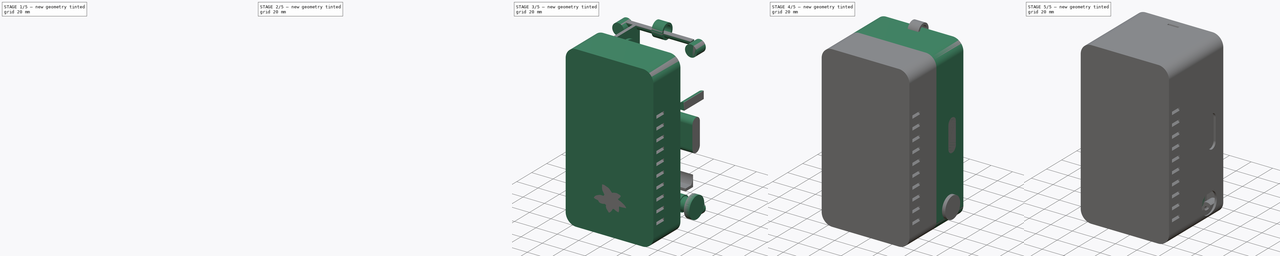
[diagram: build sequence overview — one tinted view per stage of 5, left to right]
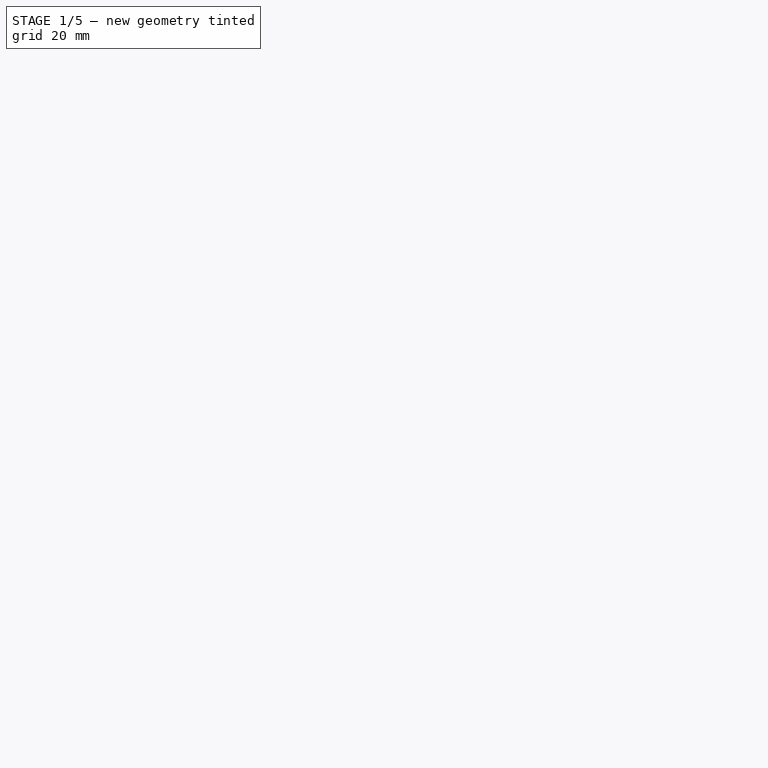
[diagram: stage 1 of 5 — iso view after this stage's code; geometry added in this stage tinted green]
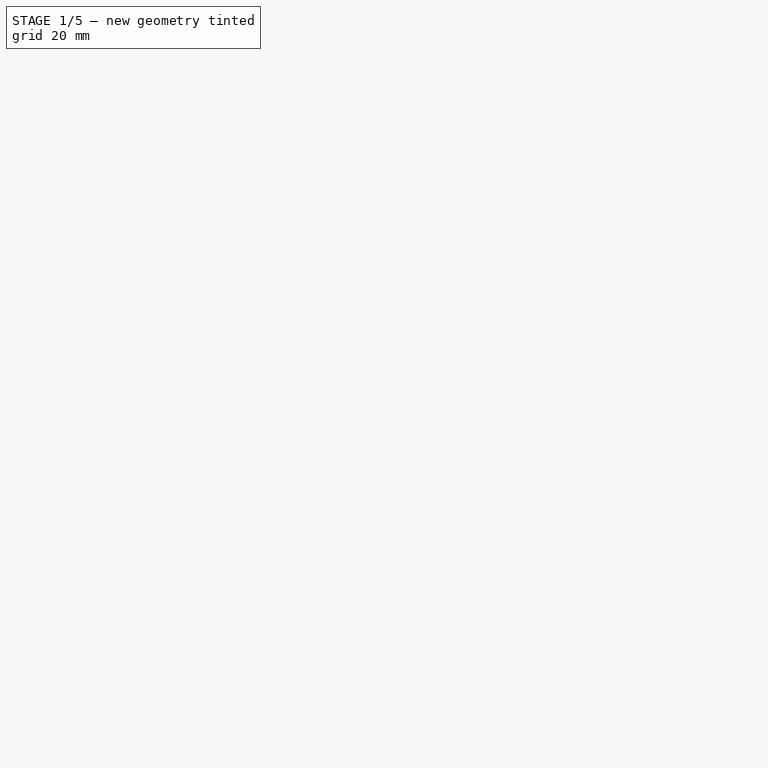
[diagram: stage 1 of 5 — front view after this stage's code; geometry added in this stage tinted green]
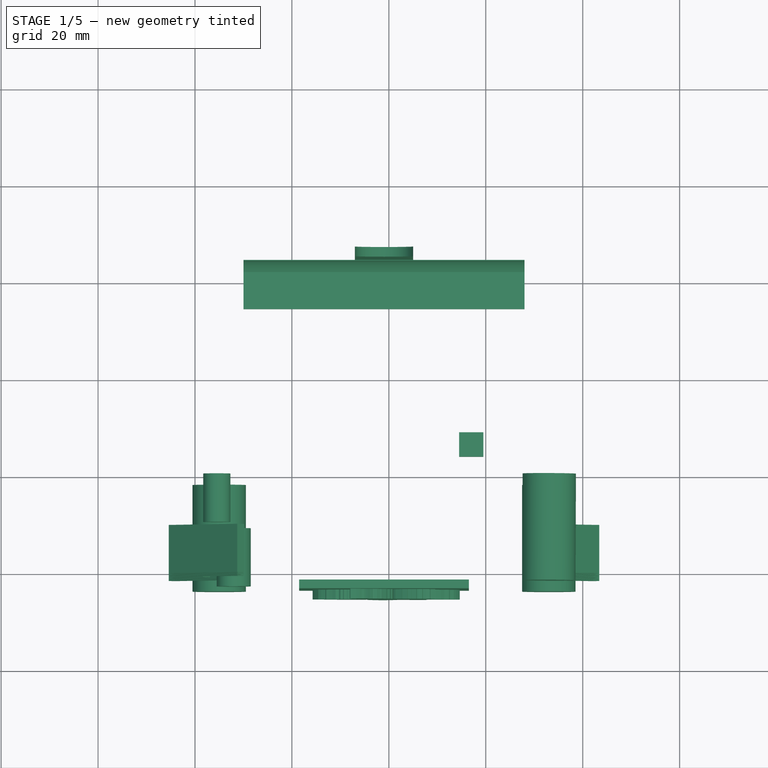
[diagram: stage 1 of 5 — top view after this stage's code; geometry added in this stage tinted green]
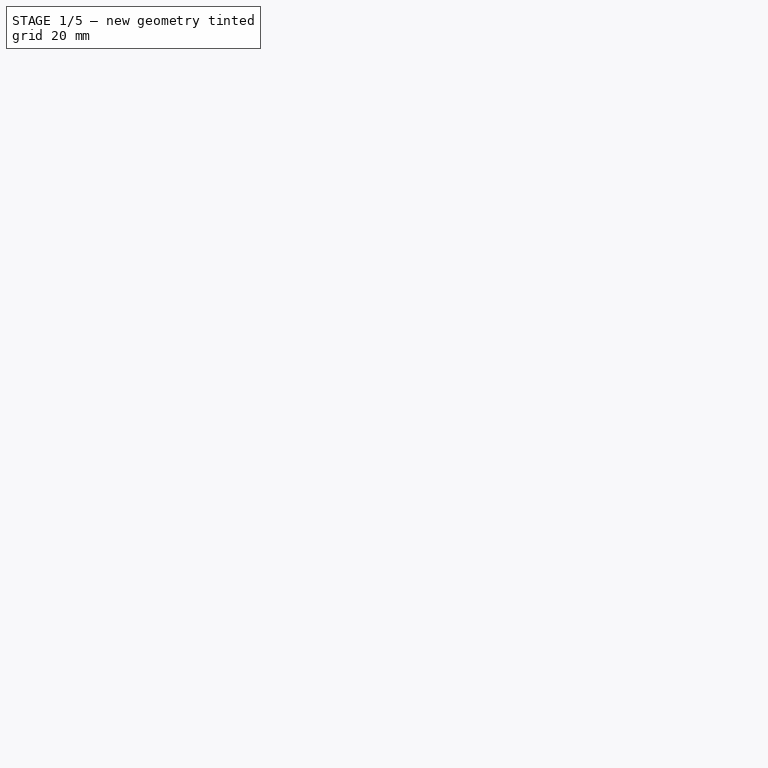
[diagram: stage 1 of 5 — right view after this stage's code; geometry added in this stage tinted green]
FCSTD DOCUMENT  (FreeCAD 0.20R29177 +233 (Git))
Label: wearableCad_10_13_2022
License: All rights reserved
LicenseURL: http://en.wikipedia.org/wiki/All_rights_reserved
objects: Part::Cylinder×106, Part::Box×70, Part::Cut×56, Part::MultiFuse×44, Part::Feature×11, Sketcher::SketchObject×2, PartDesign::Pad×2, PartDesign::Body×2, Part::FeaturePython×1
note: 296 computed .brp shape members not serialized (recipe doc carries the construction recipe); baked Part::Feature solids carry a one-line shape summary decoded from their .brp

FEATURE [Part::Cylinder] Cylinder073  label="m4HeatSetCut"
  Angle = 360
  AttacherType = Attacher::AttachEngine3D
  FirstAngle = 0
  Height = 10
  Placement = pos=(4.5,-32,141.5) rot=(-1,0,0;1.5708rad)
  Radius = 2.8
  SecondAngle = 0
FEATURE [Part::Cylinder] Cylinder074  label="m4HoleBase001"
  Angle = 360
  AttacherType = Attacher::AttachEngine3D
  FirstAngle = 0
  Height = 22
  Placement = pos=(4.5,-44,141.5) rot=(0.38203,0.653473,0.653473;3.86433rad)
  Radius = 5.5
  SecondAngle = 0
FEATURE [Part::Cylinder] Cylinder075  label="m4HeatSetCut001"
  Angle = 360
  AttacherType = Attacher::AttachEngine3D
  FirstAngle = 0
  Height = 10
  Placement = pos=(4.5,-32,141.5) rot=(-1,0,0;1.5708rad)
  Radius = 2.8
  SecondAngle = 0
FEATURE [Part::Cut] Cut040  label="m4HeatSetHoles001"
  Base = -> Cylinder074
  Placement = pos=(68.5,0,-0.5) rot=(0,0,1;0rad)
  Tool = -> Cylinder075
FEATURE [Part::Cylinder] Cylinder076  label="m4HoleBase002"
  Angle = 360
  AttacherType = Attacher::AttachEngine3D
  FirstAngle = 0
  Height = 22
  Placement = pos=(4.5,-44,141.5) rot=(0.377964,0.654654,0.654654;3.86433rad)
  Radius = 5.5
  SecondAngle = 0
FEATURE [Part::Cylinder] Cylinder077  label="m4HeatSetCut002"
  Angle = 360
  AttacherType = Attacher::AttachEngine3D
  FirstAngle = 0
  Height = 10
  Placement = pos=(4.5,-32,141.5) rot=(-1,0,0;1.5708rad)
  Radius = 2.8
  SecondAngle = 0
FEATURE [Part::Cut] Cut041  label="m4HeatSetHoles002"
  Base = -> Cylinder076
  Placement = pos=(0.5,0,-136.5) rot=(0,0,1;0rad)
  Tool = -> Cylinder077
FEATURE [Part::Cylinder] Cylinder078  label="m4HoleBase003"
  Angle = 360
  AttacherType = Attacher::AttachEngine3D
  FirstAngle = 0
  Height = 22
  Placement = pos=(4.5,-44,141.5) rot=(0.377964,0.654654,0.654654;3.86433rad)
  Radius = 5.5
  SecondAngle = 0
FEATURE [Part::Cylinder] Cylinder079  label="m4HeatSetCut003"
  Angle = 360
  AttacherType = Attacher::AttachEngine3D
  FirstAngle = 0
  Height = 10
  Placement = pos=(4.5,-32,141.5) rot=(-1,0,0;1.5708rad)
  Radius = 2.8
  SecondAngle = 0
FEATURE [Part::Cut] Cut042  label="m4HeatSetHoles003"
  Base = -> Cylinder078
  Placement = pos=(68.5,0,-136.5) rot=(0,0,1;0rad)
  Tool = -> Cylinder079
FEATURE [Part::Feature] Solid006  label="m4HeatSet"
  Placement = pos=(4.5,0,5.5) rot=(0,0,1;0rad)
  shape: bbox 6.396 x 4.801 x 6.396 mm, 237 faces (baked)
FEATURE [Part::Cylinder] Cylinder080  label="m2HeatSetOut008"
  Angle = 360
  AttacherType = Attacher::AttachEngine3D
  FirstAngle = 0
  Height = 12
  Placement = pos=(8,-44,67.1) rot=(-1,0,0;1.5708rad)
  Radius = 3.5
  SecondAngle = 0
FEATURE [Part::Cylinder] Cylinder081  label="m2HeatSet009"
  Angle = 360
  AttacherType = Attacher::AttachEngine3D
  FirstAngle = 0
  Height = 12
  Placement = pos=(8,-44,67.1) rot=(-1,0,0;1.5708rad)
  Radius = 1.6
  SecondAngle = 0
FEATURE [Part::Cut] Cut043  label="m2HeatSet010"
  Base = -> Cylinder080
  Tool = -> Cylinder081
FEATURE [Part::Box] Box043  label="lightCut"
  AttacherType = Attacher::AttachEngine3D
  Height = 5
  Length = 5
  Placement = pos=(54.5,-16,-6) rot=(0,0,1;0rad)
  Width = 5
FEATURE [Part::Box] Box045  label="Cube036"
  AttacherType = Attacher::AttachEngine3D
  Height = 2
  Length = 20
  Placement = pos=(0,0,0) rot=(0,-1,0;0.785398rad)
  Width = 10
FEATURE [Part::Box] Box046  label="Cube037"
  AttacherType = Attacher::AttachEngine3D
  Height = 2
  Length = 20
  Placement = pos=(0,0,10) rot=(0,-1,0;0.785398rad)
  Width = 10
FEATURE [Part::Box] Box047  label="Cube038"
  AttacherType = Attacher::AttachEngine3D
  Height = 2
  Length = 20
  Placement = pos=(0,0,20) rot=(0,-1,0;0.785398rad)
  Width = 10
FEATURE [Part::Box] Box048  label="Cube039"
  AttacherType = Attacher::AttachEngine3D
  Height = 2
  Length = 20
  Placement = pos=(0,0,30) rot=(0,-1,0;0.785398rad)
  Width = 10
FEATURE [Part::Box] Box049  label="Cube040"
  AttacherType = Attacher::AttachEngine3D
  Height = 2
  Length = 10
  Placement = pos=(0,0,40) rot=(0,-1,0;0.785398rad)
  Width = 10
FEATURE [Part::Box] Box050  label="Cube041"
  AttacherType = Attacher::AttachEngine3D
  Height = 2
  Length = 20
  Placement = pos=(0,0,50) rot=(0,-1,0;0.785398rad)
  Width = 10
FEATURE [Part::Box] Box051  label="Cube042"
  AttacherType = Attacher::AttachEngine3D
  Height = 2
  Length = 20
  Placement = pos=(0,0,60) rot=(0,-1,0;0.785398rad)
  Width = 10
FEATURE [Part::Box] Box052  label="Cube043"
  AttacherType = Attacher::AttachEngine3D
  Height = 2
  Length = 20
  Placement = pos=(0,0,70) rot=(0,-1,0;0.785398rad)
  Width = 10
FEATURE [Part::Box] Box053  label="Cube044"
  AttacherType = Attacher::AttachEngine3D
  Height = 2
  Length = 20
  Placement = pos=(0,0,80) rot=(0,-1,0;0.785398rad)
  Width = 10
FEATURE [Part::Box] Box054  label="Cube045"
  AttacherType = Attacher::AttachEngine3D
  Height = 2
  Length = 20
  Placement = pos=(0,0,90) rot=(0,-1,0;0.785398rad)
  Width = 10
FEATURE [Part::Box] Box055  label="Cube046"
  AttacherType = Attacher::AttachEngine3D
  Height = 2
  Length = 20
  Placement = pos=(0,0,1000) rot=(0,-1,0;0.785398rad)
  Width = 10
FEATURE [Part::MultiFuse] Fusion036
  Placement = pos=(-4,-10,15) rot=(0,0,1;0rad)
  Shapes = -> [Box045,Box046,Box047,Box048,Box049,Box050,Box051,Box052,Box053,Box054,Box055]
FEATURE [Part::Box] Box056  label="Cube047"
  AttacherType = Attacher::AttachEngine3D
  Height = 2
  Length = 20
  Placement = pos=(0,0,0) rot=(0,-1,0;0.785398rad)
  Width = 10
FEATURE [Part::Box] Box057  label="Cube048"
  AttacherType = Attacher::AttachEngine3D
  Height = 2
  Length = 20
  Placement = pos=(0,0,10) rot=(0,-1,0;0.785398rad)
  Width = 10
FEATURE [Part::Box] Box058  label="Cube049"
  AttacherType = Attacher::AttachEngine3D
  Height = 2
  Length = 20
  Placement = pos=(0,0,20) rot=(0,-1,0;0.785398rad)
  Width = 10
FEATURE [Part::Box] Box059  label="Cube050"
  AttacherType = Attacher::AttachEngine3D
  Height = 2
  Length = 20
  Placement = pos=(0,0,30) rot=(0,-1,0;0.785398rad)
  Width = 10
FEATURE [Part::Box] Box060  label="Cube051"
  AttacherType = Attacher::AttachEngine3D
  Height = 2
  Length = 10
  Placement = pos=(0,0,40) rot=(0,-1,0;0.785398rad)
  Width = 10
FEATURE [Part::Box] Box061  label="Cube052"
  AttacherType = Attacher::AttachEngine3D
  Height = 2
  Length = 20
  Placement = pos=(0,0,50) rot=(0,-1,0;0.785398rad)
  Width = 10
FEATURE [Part::Box] Box062  label="Cube053"
  AttacherType = Attacher::AttachEngine3D
  Height = 2
  Length = 20
  Placement = pos=(0,0,60) rot=(0,-1,0;0.785398rad)
  Width = 10
FEATURE [Part::Box] Box063  label="Cube054"
  AttacherType = Attacher::AttachEngine3D
  Height = 2
  Length = 20
  Placement = pos=(0,0,70) rot=(0,-1,0;0.785398rad)
  Width = 10
FEATURE [Part::Box] Box064  label="Cube055"
  AttacherType = Attacher::AttachEngine3D
  Height = 2
  Length = 10
  Placement = pos=(0,0,80) rot=(0,-1,0;0.785398rad)
  Width = 10
FEATURE [Part::Box] Box065  label="Cube056"
  AttacherType = Attacher::AttachEngine3D
  Height = 2
  Length = 20
  Placement = pos=(0,0,90) rot=(0,-1,0;0.785398rad)
  Width = 10
FEATURE [Part::Box] Box066  label="Cube057"
  AttacherType = Attacher::AttachEngine3D
  Height = 2
  Length = 20
  Placement = pos=(0,0,1000) rot=(0,-1,0;0.785398rad)
  Width = 10
FEATURE [Part::MultiFuse] Fusion037
  Placement = pos=(82,0,15) rot=(0,0,1;3.14159rad)
  Shapes = -> [Box056,Box057,Box058,Box059,Box060,Box061,Box062,Box063,Box064,Box065,Box066]
FEATURE [Part::MultiFuse] Fusion038  label="vents"
  Placement = pos=(0,-32,0) rot=(0,0,1;0rad)
  Shapes = -> [Fusion036,Fusion037]
FEATURE [Sketcher::SketchObject] Sketch
  FullyConstrained = false
  MapMode = 5
  Support = -> [XY_Plane]
  sketch-geometry (205):
    g0: LineSegment StartX=-15.0667 StartY=-2.9879 StartZ=0 EndX=-14.4175 EndY=-3.20194 EndZ=0
    g1: LineSegment StartX=-14.1386 StartY=-3.3581 StartZ=0 EndX=-13.8673 EndY=-3.55064 EndZ=0
    g2: LineSegment StartX=-10.8098 StartY=-4.00788 StartZ=0 EndX=-10.5716 EndY=-4.29909 EndZ=0
    g3: LineSegment StartX=-10.5716 StartY=-4.29909 StartZ=0 EndX=-10.1338 EndY=-4.33136 EndZ=0
    g4: LineSegment StartX=-10.1338 StartY=-4.33136 StartZ=0 EndX=-9.89036 EndY=-4.3898 EndZ=0
    g5: LineSegment StartX=-9.51656 StartY=-5.73022 StartZ=0 EndX=-9.24931 EndY=-5.76229 EndZ=0
    g6: LineSegment StartX=-9.24931 StartY=-5.76229 StartZ=0 EndX=-8.92861 EndY=-5.90126 EndZ=0
    g7: LineSegment StartX=-8.92861 StartY=-5.90126 StartZ=0 EndX=-8.54378 EndY=-5.86384 EndZ=0
    g8: LineSegment StartX=-8.54378 StartY=-5.86384 StartZ=0 EndX=-7.71788 EndY=-5.75845 EndZ=0
    g9: LineSegment StartX=-7.71788 StartY=-5.75845 StartZ=0 EndX=-7.37291 EndY=-5.97257 EndZ=0
    g10: LineSegment StartX=-7.37291 StartY=-5.97257 StartZ=0 EndX=-6.72487 EndY=-5.72038 EndZ=0
    g11: LineSegment StartX=-6.72487 StartY=-5.72038 StartZ=0 EndX=-6.27066 EndY=-5.69481 EndZ=0
    g12: LineSegment StartX=-6.27066 StartY=-5.69481 StartZ=0 EndX=-6.06223 EndY=-5.80493 EndZ=0
    g13: LineSegment StartX=-6.06223 StartY=-5.80493 StartZ=0 EndX=-5.35089 EndY=-5.48914 EndZ=0
    g14: LineSegment StartX=-5.35089 StartY=-5.48914 StartZ=0 EndX=-5.02402 EndY=-5.48914 EndZ=0
    g15: LineSegment StartX=-5.02402 StartY=-5.48914 StartZ=0 EndX=-4.80126 EndY=-5.53132 EndZ=0
    g16: LineSegment StartX=-4.80126 StartY=-5.53132 StartZ=0 EndX=-4.19735 EndY=-5.16248 EndZ=0
    g17: LineSegment StartX=-3.75191 StartY=-4.97251 StartZ=0 EndX=-3.37714 EndY=-4.97251 EndZ=0
    g18: LineSegment StartX=-3.37714 StartY=-4.97251 StartZ=0 EndX=-2.81898 EndY=-4.45422 EndZ=0
    g19: LineSegment StartX=-2.81898 StartY=-4.45422 StartZ=0 EndX=-2.62761 EndY=-4.34259 EndZ=0
    g20: LineSegment StartX=-2.62761 StartY=-4.34259 StartZ=0 EndX=-2.15112 EndY=-4.35765 EndZ=0
    g21: LineSegment StartX=-2.38042 StartY=-4.51801 StartZ=0 EndX=-3.18577 EndY=-5.42702 EndZ=0
    g22: LineSegment StartX=-3.18577 StartY=-5.42702 StartZ=0 EndX=-3.61318 EndY=-6.05824 EndZ=0
    g23: LineSegment StartX=-3.61318 StartY=-6.05824 StartZ=0 EndX=-3.7111 EndY=-6.64579 EndZ=0
    g24: LineSegment StartX=-3.7111 StartY=-6.64579 StartZ=0 EndX=-3.83514 EndY=-7.15501 EndZ=0
    g25: LineSegment StartX=-3.83514 StartY=-7.15501 StartZ=0 EndX=-3.75878 EndY=-7.50876 EndZ=0
    g26: LineSegment StartX=-3.75878 StartY=-7.50876 StartZ=0 EndX=-3.70596 EndY=-7.68135 EndZ=0
    g27: LineSegment StartX=-3.70596 StartY=-7.68135 StartZ=0 EndX=-3.53967 EndY=-7.85202 EndZ=0
    g28: LineSegment StartX=-3.53967 StartY=-7.85202 StartZ=0 EndX=-3.4685 EndY=-8.65617 EndZ=0
    g29: LineSegment StartX=-3.27268 StartY=-8.56671 StartZ=0 EndX=-3.16823 EndY=-8.76909 EndZ=0
    g30: LineSegment StartX=-3.07088 StartY=-9.32083 StartZ=0 EndX=-2.84207 EndY=-9.3355 EndZ=0
    g31: LineSegment StartX=-2.84207 StartY=-9.3355 StartZ=0 EndX=-2.45193 EndY=-10.0982 EndZ=0
    g32: LineSegment StartX=-2.45193 StartY=-10.0982 StartZ=0 EndX=-2.24953 EndY=-10.1304 EndZ=0
    g33: LineSegment StartX=-2.24953 StartY=-10.1304 StartZ=0 EndX=-0.96042 EndY=-11.8753 EndZ=0
    g34: LineSegment StartX=-0.96042 StartY=-11.8753 StartZ=0 EndX=-0.153326 EndY=-11.3889 EndZ=0
    g35: LineSegment StartX=-0.153326 StartY=-11.3889 StartZ=0 EndX=0.461347 EndY=-10.7689 EndZ=0
    g36: LineSegment StartX=0.461347 StartY=-10.7689 StartZ=0 EndX=0.669802 EndY=-10.7261 EndZ=0
    g37: LineSegment StartX=0.669802 StartY=-10.7261 StartZ=0 EndX=1.31724 EndY=-9.70998 EndZ=0
    g38: LineSegment StartX=1.31724 StartY=-9.70998 StartZ=0 EndX=1.51826 EndY=-9.65081 EndZ=0
    g39: LineSegment StartX=1.51826 StartY=-9.65081 StartZ=0 EndX=1.74022 EndY=-9.08937 EndZ=0
    g40: LineSegment StartX=1.74022 StartY=-9.08937 StartZ=0 EndX=2.02094 EndY=-9.04367 EndZ=0
    g41: LineSegment StartX=2.02094 StartY=-9.04367 StartZ=0 EndX=2.39306 EndY=-7.80327 EndZ=0
    g42: LineSegment StartX=2.39306 StartY=-7.80327 StartZ=0 EndX=2.58839 EndY=-7.69871 EndZ=0
    g43: LineSegment StartX=2.6542 StartY=-7.03945 StartZ=0 EndX=2.86963 EndY=-6.81749 EndZ=0
    g44: LineSegment StartX=2.86963 StartY=-6.81749 StartZ=0 EndX=3.0916 EndY=-6.92847 EndZ=0
    g45: LineSegment StartX=3.0916 StartY=-6.92847 StartZ=0 EndX=3.79666 EndY=-7.57478 EndZ=0
    g46: LineSegment StartX=3.79666 StartY=-7.57478 StartZ=0 EndX=3.93376 EndY=-7.50297 EndZ=0
    g47: LineSegment StartX=3.93376 StartY=-7.50297 StartZ=0 EndX=4.46256 EndY=-7.97301 EndZ=0
    g48: LineSegment StartX=4.46256 StartY=-7.97301 StartZ=0 EndX=4.68452 EndY=-7.92079 EndZ=0
    g49: LineSegment StartX=4.68452 StartY=-7.92079 StartZ=0 EndX=5.1154 EndY=-8.34513 EndZ=0
    g50: LineSegment StartX=5.1154 StartY=-8.34513 StartZ=0 EndX=5.32431 EndY=-8.28637 EndZ=0
    g51: LineSegment StartX=5.32431 StartY=-8.28637 StartZ=0 EndX=6.23668 EndY=-8.79564 EndZ=0
    g52: LineSegment StartX=6.23668 StartY=-8.79564 StartZ=0 EndX=6.50362 EndY=-8.76631 EndZ=0
    g53: LineSegment StartX=6.50362 StartY=-8.76631 StartZ=0 EndX=7.14802 EndY=-9.05537 EndZ=0
    g54: LineSegment StartX=7.14802 StartY=-9.05537 StartZ=0 EndX=8.04883 EndY=-9.18613 EndZ=0
    g55: LineSegment StartX=8.04883 StartY=-9.18613 StartZ=0 EndX=8.36847 EndY=-7.93662 EndZ=0
    g56: LineSegment StartX=8.36847 StartY=-7.93662 StartZ=0 EndX=8.49923 EndY=-7.79133 EndZ=0
    g57: LineSegment StartX=8.49923 StartY=-7.79133 StartZ=0 EndX=8.43477 EndY=-6.72206 EndZ=0
    g58: LineSegment StartX=8.43477 StartY=-6.72206 StartZ=0 EndX=8.58621 EndY=-6.47988 EndZ=0
    g59: LineSegment StartX=8.58621 StartY=-6.47988 StartZ=0 EndX=8.32296 EndY=-5.53178 EndZ=0
    g60: LineSegment StartX=8.32296 StartY=-5.53178 StartZ=0 EndX=8.43984 EndY=-5.19091 EndZ=0
    g61: LineSegment StartX=8.43984 StartY=-5.19091 StartZ=0 EndX=8.07426 EndY=-4.39307 EndZ=0
    g62: LineSegment StartX=8.07426 StartY=-4.39307 StartZ=0 EndX=8.04236 EndY=-4.17777 EndZ=0
    g63: LineSegment StartX=8.04236 StartY=-4.17777 StartZ=0 EndX=8.0902 EndY=-3.99438 EndZ=0
    g64: LineSegment StartX=8.4103 StartY=-4.11103 StartZ=0 EndX=8.72013 EndY=-4.0502 EndZ=0
    g65: LineSegment StartX=8.72013 StartY=-4.0502 StartZ=0 EndX=9.31817 EndY=-4.0502 EndZ=0
    g66: LineSegment StartX=9.31817 StartY=-4.0502 StartZ=0 EndX=9.82964 EndY=-4.15887 EndZ=0
    g67: LineSegment StartX=10.1326 StartY=-3.9675 StartZ=0 EndX=10.5175 EndY=-3.9623 EndZ=0
    g68: LineSegment StartX=10.5175 StartY=-3.9623 StartZ=0 EndX=10.8831 EndY=-3.97536 EndZ=0
    g69: LineSegment StartX=10.8831 StartY=-3.97536 StartZ=0 EndX=11.2245 EndY=-4.09431 EndZ=0
    g70: LineSegment StartX=11.2245 StartY=-4.09431 StartZ=0 EndX=11.6861 EndY=-3.91007 EndZ=0
    g71: LineSegment StartX=11.6861 StartY=-3.91007 StartZ=0 EndX=12.1039 EndY=-3.88396 EndZ=0
    g72: LineSegment StartX=12.1039 StartY=-3.88396 StartZ=0 EndX=12.6 EndY=-3.9623 EndZ=0
    g73: LineSegment StartX=12.6 StartY=-3.9623 StartZ=0 EndX=13.5793 EndY=-3.87743 EndZ=0
    g74: LineSegment StartX=13.5793 StartY=-3.87743 StartZ=0 EndX=14.3888 EndY=-3.74687 EndZ=0
    g75: LineSegment StartX=14.3888 StartY=-3.74687 StartZ=0 EndX=14.7544 EndY=-3.68158 EndZ=0
    g76: LineSegment StartX=14.7544 StartY=-3.68158 StartZ=0 EndX=15.2767 EndY=-3.75339 EndZ=0
    g77: LineSegment StartX=15.2767 StartY=-3.75339 StartZ=0 EndX=15.0432 EndY=-3.24137 EndZ=0
    g78: LineSegment StartX=15.0432 StartY=-3.24137 StartZ=0 EndX=14.5209 EndY=-2.51672 EndZ=0
    g79: LineSegment StartX=14.5209 StartY=-2.51672 StartZ=0 EndX=14.0378 EndY=-1.99445 EndZ=0
    g80: LineSegment StartX=14.0378 StartY=-1.99445 StartZ=0 EndX=13.2802 EndY=-1.54625 EndZ=0
    g81: LineSegment StartX=13.2802 StartY=-1.54625 StartZ=0 EndX=13.0438 EndY=-1.23117 EndZ=0
    g82: LineSegment StartX=13.0438 StartY=-1.23117 StartZ=0 EndX=12.1074 EndY=-0.797939 EndZ=0
    g83: LineSegment StartX=12.1074 StartY=-0.797939 StartZ=0 EndX=11.3804 EndY=-0.250878 EndZ=0
    g84: LineSegment StartX=11.3804 StartY=-0.250878 StartZ=0 EndX=10.4396 EndY=0.304889 EndZ=0
    g85: LineSegment StartX=10.4396 StartY=0.304889 StartZ=0 EndX=9.59526 EndY=0.727998 EndZ=0
    g86: LineSegment StartX=9.59526 StartY=0.727998 StartZ=0 EndX=8.53624 EndY=0.97306 EndZ=0
    g87: LineSegment StartX=8.53624 StartY=0.97306 StartZ=0 EndX=7.199 EndY=0.97306 EndZ=0
    g88: LineSegment StartX=7.199 StartY=0.97306 StartZ=0 EndX=5.77932 EndY=0.795578 EndZ=0
    g89: LineSegment StartX=5.77932 StartY=0.795578 StartZ=0 EndX=5.60186 EndY=0.795578 EndZ=0
    g90: LineSegment StartX=5.60186 StartY=0.795578 StartZ=0 EndX=5.83178 EndY=0.981815 EndZ=0
    g91: LineSegment StartX=5.83178 StartY=0.981815 StartZ=0 EndX=6.25403 EndY=1.1582 EndZ=0
    g92: LineSegment StartX=6.30214 StartY=1.38269 StartZ=0 EndX=7.17987 EndY=1.70686 EndZ=0
    g93: LineSegment StartX=7.17987 StartY=1.70686 StartZ=0 EndX=7.44682 EndY=1.79438 EndZ=0
    g94: LineSegment StartX=7.44682 StartY=1.79438 StartZ=0 EndX=7.49058 EndY=2.12696 EndZ=0
    g95: LineSegment StartX=7.49058 StartY=2.12696 StartZ=0 EndX=8.30058 EndY=2.66839 EndZ=0
    g96: LineSegment StartX=8.30058 StartY=2.66839 StartZ=0 EndX=8.68575 EndY=2.81854 EndZ=0
    g97: LineSegment StartX=8.68575 StartY=2.81854 StartZ=0 EndX=8.68575 EndY=3.12537 EndZ=0
    g98: LineSegment StartX=8.68575 StartY=3.12537 StartZ=0 EndX=8.89508 EndY=3.18684 EndZ=0
    g99: LineSegment StartX=8.89508 StartY=3.18684 StartZ=0 EndX=9.63492 EndY=4.06602 EndZ=0
    g100: LineSegment StartX=9.63492 StartY=4.06602 StartZ=0 EndX=9.62638 EndY=4.32743 EndZ=0
    g101: LineSegment StartX=9.62638 StartY=4.32743 StartZ=0 EndX=10.2068 EndY=5.18314 EndZ=0
    g102: LineSegment StartX=10.2068 StartY=5.18314 StartZ=0 EndX=9.25518 EndY=5.64445 EndZ=0
    g103: LineSegment StartX=9.1102 StartY=5.87597 StartZ=0 EndX=8.32132 EndY=5.97336 EndZ=0
    g104: LineSegment StartX=8.32132 StartY=5.97336 StartZ=0 EndX=8.15466 EndY=6.06625 EndZ=0
    g105: LineSegment StartX=7.63471 StartY=6.13088 StartZ=0 EndX=7.56391 EndY=6.33267 EndZ=0
    g106: LineSegment StartX=7.56391 StartY=6.33267 StartZ=0 EndX=6.74832 EndY=6.35496 EndZ=0
    g107: LineSegment StartX=6.74832 StartY=6.35496 StartZ=0 EndX=6.46819 EndY=6.29526 EndZ=0
    g108: LineSegment StartX=6.46819 StartY=6.29526 StartZ=0 EndX=6.27042 EndY=6.61061 EndZ=0
    g109: LineSegment StartX=6.27042 StartY=6.61061 StartZ=0 EndX=5.40453 EndY=6.33267 EndZ=0
    g110: LineSegment StartX=5.40453 StartY=6.33267 StartZ=0 EndX=5.27091 EndY=6.47164 EndZ=0
    g111: LineSegment StartX=5.27091 StartY=6.47164 StartZ=0 EndX=4.56942 EndY=6.24725 EndZ=0
    g112: LineSegment StartX=4.56942 StartY=6.24725 StartZ=0 EndX=4.44161 EndY=6.40652 EndZ=0
    g113: LineSegment StartX=4.44161 StartY=6.40652 StartZ=0 EndX=3.4195 EndY=5.94588 EndZ=0
    g114: LineSegment StartX=3.4195 StartY=5.94588 StartZ=0 EndX=3.29192 EndY=6.1532 EndZ=0
    g115: LineSegment StartX=3.29192 StartY=6.1532 StartZ=0 EndX=2.15964 EndY=5.49137 EndZ=0
    g116: LineSegment StartX=2.15964 StartY=5.49137 StartZ=0 EndX=2.00016 EndY=5.69869 EndZ=0
    g117: LineSegment StartX=2.00016 StartY=5.69869 StartZ=0 EndX=1.6185 EndY=5.34828 EndZ=0
    g118: LineSegment StartX=1.6185 StartY=5.34828 StartZ=0 EndX=1.45984 EndY=5.94974 EndZ=0
    g119: LineSegment StartX=1.38165 StartY=6.28651 StartZ=0 EndX=1.14534 EndY=6.29963 EndZ=0
    g120: LineSegment StartX=0.348522 StartY=7.29544 StartZ=0 EndX=0.126706 EndY=7.68126 EndZ=0
    g121: LineSegment StartX=0.126706 StartY=7.68126 StartZ=0 EndX=-0.415308 EndY=8.18163 EndZ=0
    g122: LineSegment StartX=-0.415308 StartY=8.18163 StartZ=0 EndX=-0.872658 EndY=8.6237 EndZ=0
    g123: LineSegment StartX=-0.872658 StartY=8.6237 StartZ=0 EndX=-1.12074 EndY=8.64329 EndZ=0
    g124: LineSegment StartX=-1.12074 StartY=8.64329 StartZ=0 EndX=-1.79316 EndY=9.11986 EndZ=0
    g125: LineSegment StartX=-1.79316 StartY=9.11986 StartZ=0 EndX=-2.31488 EndY=9.12122 EndZ=0
    g126: LineSegment StartX=-2.31488 StartY=9.12122 StartZ=0 EndX=-2.71321 EndY=9.13846 EndZ=0
    g127: LineSegment StartX=-2.71321 StartY=9.13846 StartZ=0 EndX=-2.88425 EndY=9.34157 EndZ=0
    g128: LineSegment StartX=-2.88425 StartY=9.34157 StartZ=0 EndX=-3.16779 EndY=9.26454 EndZ=0
    g129: LineSegment StartX=-3.70739 StartY=9.82796 StartZ=0 EndX=-4.04915 EndY=9.7003 EndZ=0
    g130: LineSegment StartX=-4.04915 StartY=9.7003 StartZ=0 EndX=-4.42988 EndY=10.011 EndZ=0
    g131: LineSegment StartX=-5.98947 StartY=10.3656 StartZ=0 EndX=-7.32605 EndY=10.4108 EndZ=0
    g132: LineSegment StartX=-7.25254 StartY=9.13254 StartZ=0 EndX=-7.36878 EndY=8.7693 EndZ=0
    g133: LineSegment StartX=-7.36878 StartY=8.7693 StartZ=0 EndX=-7.2614 EndY=7.83762 EndZ=0
    g134: LineSegment StartX=-7.2614 StartY=7.83762 StartZ=0 EndX=-7.41112 EndY=7.6042 EndZ=0
    g135: LineSegment StartX=-7.41112 StartY=7.6042 StartZ=0 EndX=-7.09216 EndY=6.74302 EndZ=0
    g136: LineSegment StartX=-7.09216 StartY=6.74302 StartZ=0 EndX=-7.10014 EndY=6.55962 EndZ=0
    g137: LineSegment StartX=-7.10014 StartY=6.55962 StartZ=0 EndX=-7.29151 EndY=6.3842 EndZ=0
    g138: LineSegment StartX=-7.29151 StartY=6.3842 StartZ=0 EndX=-6.74132 EndY=5.29976 EndZ=0
    g139: LineSegment StartX=-6.74132 StartY=5.29976 StartZ=0 EndX=-6.87495 EndY=5.02732 EndZ=0
    g140: LineSegment StartX=-6.87495 StartY=5.02732 StartZ=0 EndX=-6.31586 EndY=4.42065 EndZ=0
    g141: LineSegment StartX=-6.31586 StartY=4.42065 StartZ=0 EndX=-6.30396 EndY=4.19463 EndZ=0
    g142: LineSegment StartX=-6.30396 StartY=4.19463 StartZ=0 EndX=-6.05415 EndY=4.0043 EndZ=0
    g143: LineSegment StartX=-6.05415 StartY=4.0043 StartZ=0 EndX=-6.18501 EndY=3.95672 EndZ=0
    g144: LineSegment StartX=-6.18501 StartY=3.95672 StartZ=0 EndX=-5.54265 EndY=3.07645 EndZ=0
    g145: LineSegment StartX=-5.54265 StartY=3.07645 StartZ=0 EndX=-5.57833 EndY=2.90991 EndZ=0
    g146: LineSegment StartX=-5.57833 StartY=2.90991 StartZ=0 EndX=-5.1263 EndY=2.41029 EndZ=0
    g147: LineSegment StartX=-5.1263 StartY=2.41029 StartZ=0 EndX=-5.18578 EndY=2.26755 EndZ=0
    g148: LineSegment StartX=-5.18578 StartY=2.26755 StartZ=0 EndX=-4.73375 EndY=1.89878 EndZ=0
    g149: LineSegment StartX=-4.73375 StartY=1.89878 StartZ=0 EndX=-4.42446 EndY=1.5895 EndZ=0
    g150: LineSegment StartX=-4.42446 StartY=1.5895 StartZ=0 EndX=-5.31663 EndY=1.29211 EndZ=0
    g151: LineSegment StartX=-5.31663 StartY=1.29211 StartZ=0 EndX=-5.84004 EndY=1.08988 EndZ=0
    g152: LineSegment StartX=-5.84004 StartY=1.08988 StartZ=0 EndX=-6.04226 EndY=0.792495 EndZ=0
    g153: LineSegment StartX=-6.04226 StartY=0.792495 StartZ=0 EndX=-6.94632 EndY=0.994719 EndZ=0
    g154: LineSegment StartX=-6.94632 StartY=0.994719 StartZ=0 EndX=-7.19613 EndY=0.887659 EndZ=0
    g155: LineSegment StartX=-7.19613 StartY=0.887659 StartZ=0 EndX=-7.8147 EndY=1.0423 EndZ=0
    g156: LineSegment StartX=-7.8147 StartY=1.0423 StartZ=0 EndX=-8.02502 EndY=0.969153 EndZ=0
    g157: LineSegment StartX=-8.02502 StartY=0.969153 StartZ=0 EndX=-8.60267 EndY=1.03042 EndZ=0
    g158: LineSegment StartX=-8.60267 StartY=1.03042 StartZ=0 EndX=-8.8346 EndY=0.872878 EndZ=0
    g159: LineSegment StartX=-8.8346 StartY=0.872878 StartZ=0 EndX=-9.33349 EndY=0.929767 EndZ=0
    g160: LineSegment StartX=-9.33349 StartY=0.929767 StartZ=0 EndX=-9.66169 EndY=0.649695 EndZ=0
    g161: LineSegment StartX=-9.66169 StartY=0.649695 StartZ=0 EndX=-10.3249 EndY=0.649695 EndZ=0
    g162: LineSegment StartX=-10.3249 StartY=0.649695 StartZ=0 EndX=-11.0107 EndY=0.32425 EndZ=0
    g163: LineSegment StartX=-11.0107 StartY=0.32425 StartZ=0 EndX=-11.7283 EndY=0.053139 EndZ=0
    g164: LineSegment StartX=-11.7283 StartY=0.053139 StartZ=0 EndX=-12.2971 EndY=-0.13161 EndZ=0
    g165: LineSegment StartX=-12.2971 StartY=-0.13161 StartZ=0 EndX=-12.4212 EndY=-0.347049 EndZ=0
    g166: LineSegment StartX=-12.4212 StartY=-0.347049 StartZ=0 EndX=-13.296 EndY=-0.817096 EndZ=0
    g167: LineSegment StartX=-13.296 StartY=-0.817096 StartZ=0 EndX=-13.9227 EndY=-1.24144 EndZ=0
    g168: LineSegment StartX=-13.9227 StartY=-1.24144 StartZ=0 EndX=-14.1708 EndY=-1.59398 EndZ=0
    g169: LineSegment StartX=-14.1708 StartY=-1.59398 StartZ=0 EndX=-14.5386 EndY=-2.09216 EndZ=0
    g170: LineSegment StartX=-14.5386 StartY=-2.09216 StartZ=0 EndX=-14.7831 EndY=-2.4577 EndZ=0
    g171: LineSegment StartX=-14.7831 StartY=-2.4577 StartZ=0 EndX=-15.0667 EndY=-2.9879 EndZ=0
    g172: LineSegment StartX=7.82861 StartY=6.04487 StartZ=0 EndX=7.63471 EndY=6.13088 EndZ=0
    g173: LineSegment StartX=-14.4175 StartY=-3.20194 StartZ=0 EndX=-14.1386 EndY=-3.3581 EndZ=0
    g174: LineSegment StartX=-13.8673 StartY=-3.55064 StartZ=0 EndX=-13.4107 EndY=-3.57136 EndZ=0
    g175: LineSegment StartX=-13.1321 StartY=-3.61699 StartZ=0 EndX=-12.817 EndY=-3.62343 EndZ=0
    g176: LineSegment StartX=-12.817 StartY=-3.62343 StartZ=0 EndX=-12.4662 EndY=-3.85302 EndZ=0
    g177: LineSegment StartX=-13.4107 StartY=-3.57136 StartZ=0 EndX=-13.1321 EndY=-3.61699 EndZ=0
    g178: LineSegment StartX=-12.4662 StartY=-3.85302 StartZ=0 EndX=-11.8704 EndY=-3.85302 EndZ=0
    g179: LineSegment StartX=-11.8704 StartY=-3.85302 StartZ=0 EndX=-11.5204 EndY=-4.00836 EndZ=0
    g180: LineSegment StartX=-11.5204 StartY=-4.00836 StartZ=0 EndX=-11.1389 EndY=-4.05555 EndZ=0
    g181: LineSegment StartX=-11.1389 StartY=-4.05555 StartZ=0 EndX=-10.8098 EndY=-4.00788 EndZ=0
    g182: LineSegment StartX=-9.89036 StartY=-4.3898 StartZ=0 EndX=-9.99555 EndY=-4.87697 EndZ=0
    g183: LineSegment StartX=-9.99555 StartY=-4.87697 StartZ=0 EndX=-10.0894 EndY=-5.36391 EndZ=0
    g184: LineSegment StartX=-10.0894 StartY=-5.36391 StartZ=0 EndX=-10.107 EndY=-5.50471 EndZ=0
    g185: LineSegment StartX=-10.107 StartY=-5.50471 StartZ=0 EndX=-9.77848 EndY=-5.63965 EndZ=0
    g186: LineSegment StartX=-9.77848 StartY=-5.63965 StartZ=0 EndX=-9.51656 EndY=-5.73022 EndZ=0
    g187: LineSegment StartX=-4.19735 StartY=-5.16248 StartZ=0 EndX=-3.75191 EndY=-4.97251 EndZ=0
    g188: LineSegment StartX=-2.38042 StartY=-4.51801 StartZ=0 EndX=-2.15112 EndY=-4.35765 EndZ=0
    g189: LineSegment StartX=-3.4685 StartY=-8.65617 StartZ=0 EndX=-3.27268 EndY=-8.56671 EndZ=0
    g190: LineSegment StartX=-3.16823 StartY=-8.76909 StartZ=0 EndX=-3.07088 EndY=-9.32083 EndZ=0
    g191: LineSegment StartX=2.58839 StartY=-7.69871 StartZ=0 EndX=2.6542 EndY=-7.03945 EndZ=0
    g192: LineSegment StartX=8.0902 StartY=-3.99438 StartZ=0 EndX=8.4103 EndY=-4.11103 EndZ=0
    g193: LineSegment StartX=9.82964 StartY=-4.15887 StartZ=0 EndX=10.1326 EndY=-3.9675 EndZ=0
    g194: LineSegment StartX=6.30214 StartY=1.38269 StartZ=0 EndX=6.25403 EndY=1.1582 EndZ=0
    g195: LineSegment StartX=1.38165 StartY=6.28651 StartZ=0 EndX=1.45984 EndY=5.94974 EndZ=0
    g196: LineSegment StartX=0.348522 StartY=7.29544 StartZ=0 EndX=0.824344 EndY=6.91479 EndZ=0
    g197: LineSegment StartX=0.824344 StartY=6.91479 StartZ=0 EndX=1.14534 EndY=6.29963 EndZ=0
    g198: LineSegment StartX=-3.70739 StartY=9.82796 StartZ=0 EndX=-3.16779 EndY=9.26454 EndZ=0
    g199: LineSegment StartX=-5.98947 StartY=10.3656 StartZ=0 EndX=-5.43038 EndY=10.4489 EndZ=0
    g200: LineSegment StartX=-5.43038 StartY=10.4489 StartZ=0 EndX=-4.9791 EndY=10.1425 EndZ=0
    g201: LineSegment StartX=-4.42988 StartY=10.011 StartZ=0 EndX=-4.9791 EndY=10.1425 EndZ=0
    g202: LineSegment StartX=-7.25254 StartY=9.13254 StartZ=0 EndX=-7.32605 EndY=10.4108 EndZ=0
    g203: LineSegment StartX=7.82861 StartY=6.04487 StartZ=0 EndX=8.15466 EndY=6.06625 EndZ=0
    g204: LineSegment StartX=9.1102 StartY=5.87597 StartZ=0 EndX=9.25518 EndY=5.64445 EndZ=0
  constraints (114):
    c: Coincident(g4,g3)
    c: Coincident(g6,g5)
    c: Coincident(g8,g7)
    c: Coincident(g9,g8)
    c: Coincident(g10,g9)
    c: Coincident(g11,g10)
    c: Coincident(g13,g12)
    c: Coincident(g16,g15)
    c: Coincident(g22,g21)
    c: Coincident(g25,g24)
    c: Coincident(g26,g25)
    c: Coincident(g28,g27)
    c: Coincident(g33,g32)
    c: Coincident(g37,g36)
    c: Coincident(g38,g37)
    c: Coincident(g40,g39)
    c: Coincident(g44,g43)
    c: Coincident(g51,g50)
    c: Coincident(g52,g51)
    c: Coincident(g57,g56)
    c: Coincident(g58,g57)
    c: Coincident(g59,g58)
    c: Coincident(g61,g60)
    c: Coincident(g63,g62)
    c: Coincident(g66,g65)
    c: Coincident(g70,g69)
    c: Coincident(g72,g71)
    c: Coincident(g73,g72)
    c: Coincident(g74,g73)
    c: Coincident(g77,g76)
    c: Coincident(g80,g79)
    c: Coincident(g81,g80)
    c: Coincident(g83,g82)
    c: Coincident(g85,g84)
    c: Coincident(g86,g85)
    c: Coincident(g87,g86)
    c: Coincident(g89,g88)
    c: Coincident(g90,g89)
    c: Coincident(g91,g90)
    c: Coincident(g93,g92)
    c: Coincident(g95,g94)
    c: Coincident(g97,g96)
    c: Coincident(g98,g97)
    c: Coincident(g99,g98)
    c: Coincident(g100,g99)
    c: Coincident(g104,g103)
    c: Coincident(g106,g105)
    c: Coincident(g107,g106)
    c: Coincident(g111,g110)
    c: Coincident(g113,g112)
    c: Coincident(g118,g117)
    c: Coincident(g122,g121)
    c: Coincident(g126,g125)
    c: Coincident(g130,g129)
    c: Coincident(g133,g132)
    c: Coincident(g134,g133)
    c: Coincident(g135,g134)
    c: Coincident(g139,g138)
    c: Coincident(g142,g141)
    c: Coincident(g156,g155)
    c: Coincident(g157,g156)
    c: Coincident(g159,g158)
    c: Coincident(g161,g160)
    c: Coincident(g164,g163)
    c: Coincident(g165,g164)
    c: Coincident(g168,g167)
    c: Coincident(g169,g168)
    c: Coincident(g171,g170)
    c: Coincident(g171,g0)
    c: Coincident(g172,g105)
    c: DistanceX(g165) = -12.4212
    c: DistanceY(g165) = -0.347049
    c: Coincident(g173,g0)
    c: Coincident(g173,g1)
    c: Coincident(g174,g1)
    c: Coincident(g177,g174)
    c: Coincident(g177,g175)
    c: Coincident(g178,g176)
    c: Coincident(g181,g2)
    c: Coincident(g182,g4)
    c: Coincident(g186,g185)
    c: Coincident(g186,g5)
    c: Coincident(g187,g16)
    c: Coincident(g187,g17)
    c: Coincident(g188,g21)
    c: Coincident(g188,g20)
    c: Coincident(g189,g28)
    c: Coincident(g189,g29)
    c: Coincident(g190,g29)
    c: Coincident(g190,g30)
    c: Coincident(g191,g42)
    c: Coincident(g191,g43)
    c: Coincident(g192,g63)
    c: Coincident(g192,g64)
    c: Coincident(g193,g66)
    c: Coincident(g193,g67)
    c: Coincident(g194,g92)
    c: Coincident(g194,g91)
    c: Coincident(g195,g119)
    c: Coincident(g195,g118)
    c: Coincident(g196,g120)
    c: Coincident(g197,g119)
    c: Coincident(g198,g129)
    c: Coincident(g198,g128)
    c: Coincident(g199,g131)
    c: Coincident(g200,g199)
    c: Coincident(g201,g130)
    c: Coincident(g201,g200)
    c: Coincident(g202,g132)
    c: Coincident(g202,g131)
    c: Coincident(g203,g172)
    c: Coincident(g203,g104)
    c: Coincident(g204,g103)
    c: Coincident(g204,g102)
FEATURE [PartDesign::Pad] Pad
  Direction = (0,0,1)
  Length = 3
  Length2 = 10
  Profile = -> Sketch
  ReferenceAxis = -> Sketch [N_Axis]
  Type = 0
FEATURE [PartDesign::Body] Body  label="logo"
  Group = -> [Sketch,Pad]
  Origin = -> Origin
  Placement = pos=(39.35,-43,30) rot=(1,0,0;1.5708rad)
  Tip = -> Pad
FEATURE [Part::Box] Box067  label="logoBase"
  AttacherType = Attacher::AttachEngine3D
  Height = 30
  Length = 35
  Placement = pos=(21.5,-44,15.25) rot=(0,0,1;0rad)
  Width = 1.8
FEATURE [Part::MultiFuse] Fusion039  label="logo001"
  Shapes = -> [Body,Box067]
FEATURE [Part::Box] Box068  label="logoBase001"
  AttacherType = Attacher::AttachEngine3D
  Height = 30
  Length = 35
  Placement = pos=(21.5,-44,15.25) rot=(0,0,1;0rad)
  Width = 1.8
FEATURE [Sketcher::SketchObject] Sketch001
  FullyConstrained = false
  MapMode = 5
  Support = -> [XY_Plane001]
  sketch-geometry (205):
    g0: LineSegment StartX=-15.0667 StartY=-2.9879 StartZ=0 EndX=-14.4175 EndY=-3.20194 EndZ=0
    g1: LineSegment StartX=-14.1386 StartY=-3.3581 StartZ=0 EndX=-13.8673 EndY=-3.55064 EndZ=0
    g2: LineSegment StartX=-10.8098 StartY=-4.00788 StartZ=0 EndX=-10.5716 EndY=-4.29909 EndZ=0
    g3: LineSegment StartX=-10.5716 StartY=-4.29909 StartZ=0 EndX=-10.1338 EndY=-4.33136 EndZ=0
    g4: LineSegment StartX=-10.1338 StartY=-4.33136 StartZ=0 EndX=-9.89036 EndY=-4.3898 EndZ=0
    g5: LineSegment StartX=-9.51656 StartY=-5.73022 StartZ=0 EndX=-9.24931 EndY=-5.76229 EndZ=0
    g6: LineSegment StartX=-9.24931 StartY=-5.76229 StartZ=0 EndX=-8.92861 EndY=-5.90126 EndZ=0
    g7: LineSegment StartX=-8.92861 StartY=-5.90126 StartZ=0 EndX=-8.54378 EndY=-5.86384 EndZ=0
    g8: LineSegment StartX=-8.54378 StartY=-5.86384 StartZ=0 EndX=-7.71788 EndY=-5.75845 EndZ=0
    g9: LineSegment StartX=-7.71788 StartY=-5.75845 StartZ=0 EndX=-7.37291 EndY=-5.97257 EndZ=0
    g10: LineSegment StartX=-7.37291 StartY=-5.97257 StartZ=0 EndX=-6.72487 EndY=-5.72038 EndZ=0
    g11: LineSegment StartX=-6.72487 StartY=-5.72038 StartZ=0 EndX=-6.27066 EndY=-5.69481 EndZ=0
    g12: LineSegment StartX=-6.27066 StartY=-5.69481 StartZ=0 EndX=-6.06223 EndY=-5.80493 EndZ=0
    g13: LineSegment StartX=-6.06223 StartY=-5.80493 StartZ=0 EndX=-5.35089 EndY=-5.48914 EndZ=0
    g14: LineSegment StartX=-5.35089 StartY=-5.48914 StartZ=0 EndX=-5.02402 EndY=-5.48914 EndZ=0
    g15: LineSegment StartX=-5.02402 StartY=-5.48914 StartZ=0 EndX=-4.80126 EndY=-5.53132 EndZ=0
    g16: LineSegment StartX=-4.80126 StartY=-5.53132 StartZ=0 EndX=-4.19735 EndY=-5.16248 EndZ=0
    g17: LineSegment StartX=-3.75191 StartY=-4.97251 StartZ=0 EndX=-3.37714 EndY=-4.97251 EndZ=0
    g18: LineSegment StartX=-3.37714 StartY=-4.97251 StartZ=0 EndX=-2.81898 EndY=-4.45422 EndZ=0
    g19: LineSegment StartX=-2.81898 StartY=-4.45422 StartZ=0 EndX=-2.62761 EndY=-4.34259 EndZ=0
    g20: LineSegment StartX=-2.62761 StartY=-4.34259 StartZ=0 EndX=-2.15112 EndY=-4.35765 EndZ=0
    g21: LineSegment StartX=-2.38042 StartY=-4.51801 StartZ=0 EndX=-3.18577 EndY=-5.42702 EndZ=0
    g22: LineSegment StartX=-3.18577 StartY=-5.42702 StartZ=0 EndX=-3.61318 EndY=-6.05824 EndZ=0
    g23: LineSegment StartX=-3.61318 StartY=-6.05824 StartZ=0 EndX=-3.7111 EndY=-6.64579 EndZ=0
    g24: LineSegment StartX=-3.7111 StartY=-6.64579 StartZ=0 EndX=-3.83514 EndY=-7.15501 EndZ=0
    g25: LineSegment StartX=-3.83514 StartY=-7.15501 StartZ=0 EndX=-3.75878 EndY=-7.50876 EndZ=0
    g26: LineSegment StartX=-3.75878 StartY=-7.50876 StartZ=0 EndX=-3.70596 EndY=-7.68135 EndZ=0
    g27: LineSegment StartX=-3.70596 StartY=-7.68135 StartZ=0 EndX=-3.53967 EndY=-7.85202 EndZ=0
    g28: LineSegment StartX=-3.53967 StartY=-7.85202 StartZ=0 EndX=-3.4685 EndY=-8.65617 EndZ=0
    g29: LineSegment StartX=-3.27268 StartY=-8.56671 StartZ=0 EndX=-3.16823 EndY=-8.76909 EndZ=0
    g30: LineSegment StartX=-3.07088 StartY=-9.32083 StartZ=0 EndX=-2.84207 EndY=-9.3355 EndZ=0
    g31: LineSegment StartX=-2.84207 StartY=-9.3355 StartZ=0 EndX=-2.45193 EndY=-10.0982 EndZ=0
    g32: LineSegment StartX=-2.45193 StartY=-10.0982 StartZ=0 EndX=-2.24953 EndY=-10.1304 EndZ=0
    g33: LineSegment StartX=-2.24953 StartY=-10.1304 StartZ=0 EndX=-0.96042 EndY=-11.8753 EndZ=0
    g34: LineSegment StartX=-0.96042 StartY=-11.8753 StartZ=0 EndX=-0.153326 EndY=-11.3889 EndZ=0
    g35: LineSegment StartX=-0.153326 StartY=-11.3889 StartZ=0 EndX=0.461347 EndY=-10.7689 EndZ=0
    g36: LineSegment StartX=0.461347 StartY=-10.7689 StartZ=0 EndX=0.669802 EndY=-10.7261 EndZ=0
    g37: LineSegment StartX=0.669802 StartY=-10.7261 StartZ=0 EndX=1.31724 EndY=-9.70998 EndZ=0
    g38: LineSegment StartX=1.31724 StartY=-9.70998 StartZ=0 EndX=1.51826 EndY=-9.65081 EndZ=0
    g39: LineSegment StartX=1.51826 StartY=-9.65081 StartZ=0 EndX=1.74022 EndY=-9.08937 EndZ=0
    g40: LineSegment StartX=1.74022 StartY=-9.08937 StartZ=0 EndX=2.02094 EndY=-9.04367 EndZ=0
    g41: LineSegment StartX=2.02094 StartY=-9.04367 StartZ=0 EndX=2.39306 EndY=-7.80327 EndZ=0
    g42: LineSegment StartX=2.39306 StartY=-7.80327 StartZ=0 EndX=2.58839 EndY=-7.69871 EndZ=0
    g43: LineSegment StartX=2.6542 StartY=-7.03945 StartZ=0 EndX=2.86963 EndY=-6.81749 EndZ=0
    g44: LineSegment StartX=2.86963 StartY=-6.81749 StartZ=0 EndX=3.0916 EndY=-6.92847 EndZ=0
    g45: LineSegment StartX=3.0916 StartY=-6.92847 StartZ=0 EndX=3.79666 EndY=-7.57478 EndZ=0
    g46: LineSegment StartX=3.79666 StartY=-7.57478 StartZ=0 EndX=3.93376 EndY=-7.50297 EndZ=0
    g47: LineSegment StartX=3.93376 StartY=-7.50297 StartZ=0 EndX=4.46256 EndY=-7.97301 EndZ=0
    g48: LineSegment StartX=4.46256 StartY=-7.97301 StartZ=0 EndX=4.68452 EndY=-7.92079 EndZ=0
    g49: LineSegment StartX=4.68452 StartY=-7.92079 StartZ=0 EndX=5.1154 EndY=-8.34513 EndZ=0
    g50: LineSegment StartX=5.1154 StartY=-8.34513 StartZ=0 EndX=5.32431 EndY=-8.28637 EndZ=0
    g51: LineSegment StartX=5.32431 StartY=-8.28637 StartZ=0 EndX=6.23668 EndY=-8.79564 EndZ=0
    g52: LineSegment StartX=6.23668 StartY=-8.79564 StartZ=0 EndX=6.50362 EndY=-8.76631 EndZ=0
    g53: LineSegment StartX=6.50362 StartY=-8.76631 StartZ=0 EndX=7.14802 EndY=-9.05537 EndZ=0
    g54: LineSegment StartX=7.14802 StartY=-9.05537 StartZ=0 EndX=8.04883 EndY=-9.18613 EndZ=0
    g55: LineSegment StartX=8.04883 StartY=-9.18613 StartZ=0 EndX=8.36847 EndY=-7.93662 EndZ=0
    g56: LineSegment StartX=8.36847 StartY=-7.93662 StartZ=0 EndX=8.49923 EndY=-7.79133 EndZ=0
    g57: LineSegment StartX=8.49923 StartY=-7.79133 StartZ=0 EndX=8.43477 EndY=-6.72206 EndZ=0
    g58: LineSegment StartX=8.43477 StartY=-6.72206 StartZ=0 EndX=8.58621 EndY=-6.47988 EndZ=0
    g59: LineSegment StartX=8.58621 StartY=-6.47988 StartZ=0 EndX=8.32296 EndY=-5.53178 EndZ=0
    g60: LineSegment StartX=8.32296 StartY=-5.53178 StartZ=0 EndX=8.43984 EndY=-5.19091 EndZ=0
    g61: LineSegment StartX=8.43984 StartY=-5.19091 StartZ=0 EndX=8.07426 EndY=-4.39307 EndZ=0
    g62: LineSegment StartX=8.07426 StartY=-4.39307 StartZ=0 EndX=8.04236 EndY=-4.17777 EndZ=0
    g63: LineSegment StartX=8.04236 StartY=-4.17777 StartZ=0 EndX=8.0902 EndY=-3.99438 EndZ=0
    g64: LineSegment StartX=8.4103 StartY=-4.11103 StartZ=0 EndX=8.72013 EndY=-4.0502 EndZ=0
    g65: LineSegment StartX=8.72013 StartY=-4.0502 StartZ=0 EndX=9.31817 EndY=-4.0502 EndZ=0
    g66: LineSegment StartX=9.31817 StartY=-4.0502 StartZ=0 EndX=9.82964 EndY=-4.15887 EndZ=0
    g67: LineSegment StartX=10.1326 StartY=-3.9675 StartZ=0 EndX=10.5175 EndY=-3.9623 EndZ=0
    g68: LineSegment StartX=10.5175 StartY=-3.9623 StartZ=0 EndX=10.8831 EndY=-3.97536 EndZ=0
    g69: LineSegment StartX=10.8831 StartY=-3.97536 StartZ=0 EndX=11.2245 EndY=-4.09431 EndZ=0
    g70: LineSegment StartX=11.2245 StartY=-4.09431 StartZ=0 EndX=11.6861 EndY=-3.91007 EndZ=0
    g71: LineSegment StartX=11.6861 StartY=-3.91007 StartZ=0 EndX=12.1039 EndY=-3.88396 EndZ=0
    g72: LineSegment StartX=12.1039 StartY=-3.88396 StartZ=0 EndX=12.6 EndY=-3.9623 EndZ=0
    g73: LineSegment StartX=12.6 StartY=-3.9623 StartZ=0 EndX=13.5793 EndY=-3.87743 EndZ=0
    g74: LineSegment StartX=13.5793 StartY=-3.87743 StartZ=0 EndX=14.3888 EndY=-3.74687 EndZ=0
    g75: LineSegment StartX=14.3888 StartY=-3.74687 StartZ=0 EndX=14.7544 EndY=-3.68158 EndZ=0
    g76: LineSegment StartX=14.7544 StartY=-3.68158 StartZ=0 EndX=15.2767 EndY=-3.75339 EndZ=0
    g77: LineSegment StartX=15.2767 StartY=-3.75339 StartZ=0 EndX=15.0432 EndY=-3.24137 EndZ=0
    g78: LineSegment StartX=15.0432 StartY=-3.24137 StartZ=0 EndX=14.5209 EndY=-2.51672 EndZ=0
    g79: LineSegment StartX=14.5209 StartY=-2.51672 StartZ=0 EndX=14.0378 EndY=-1.99445 EndZ=0
    g80: LineSegment StartX=14.0378 StartY=-1.99445 StartZ=0 EndX=13.2802 EndY=-1.54625 EndZ=0
    g81: LineSegment StartX=13.2802 StartY=-1.54625 StartZ=0 EndX=13.0438 EndY=-1.23117 EndZ=0
    g82: LineSegment StartX=13.0438 StartY=-1.23117 StartZ=0 EndX=12.1074 EndY=-0.797939 EndZ=0
    g83: LineSegment StartX=12.1074 StartY=-0.797939 StartZ=0 EndX=11.3804 EndY=-0.250878 EndZ=0
    g84: LineSegment StartX=11.3804 StartY=-0.250878 StartZ=0 EndX=10.4396 EndY=0.304889 EndZ=0
    g85: LineSegment StartX=10.4396 StartY=0.304889 StartZ=0 EndX=9.59526 EndY=0.727998 EndZ=0
    g86: LineSegment StartX=9.59526 StartY=0.727998 StartZ=0 EndX=8.53624 EndY=0.97306 EndZ=0
    g87: LineSegment StartX=8.53624 StartY=0.97306 StartZ=0 EndX=7.199 EndY=0.97306 EndZ=0
    g88: LineSegment StartX=7.199 StartY=0.97306 StartZ=0 EndX=5.77932 EndY=0.795578 EndZ=0
    g89: LineSegment StartX=5.77932 StartY=0.795578 StartZ=0 EndX=5.60186 EndY=0.795578 EndZ=0
    g90: LineSegment StartX=5.60186 StartY=0.795578 StartZ=0 EndX=5.83178 EndY=0.981815 EndZ=0
    g91: LineSegment StartX=5.83178 StartY=0.981815 StartZ=0 EndX=6.25403 EndY=1.1582 EndZ=0
    g92: LineSegment StartX=6.30214 StartY=1.38269 StartZ=0 EndX=7.17987 EndY=1.70686 EndZ=0
    g93: LineSegment StartX=7.17987 StartY=1.70686 StartZ=0 EndX=7.44682 EndY=1.79438 EndZ=0
    g94: LineSegment StartX=7.44682 StartY=1.79438 StartZ=0 EndX=7.49058 EndY=2.12696 EndZ=0
    g95: LineSegment StartX=7.49058 StartY=2.12696 StartZ=0 EndX=8.30058 EndY=2.66839 EndZ=0
    g96: LineSegment StartX=8.30058 StartY=2.66839 StartZ=0 EndX=8.68575 EndY=2.81854 EndZ=0
    g97: LineSegment StartX=8.68575 StartY=2.81854 StartZ=0 EndX=8.68575 EndY=3.12537 EndZ=0
    g98: LineSegment StartX=8.68575 StartY=3.12537 StartZ=0 EndX=8.89508 EndY=3.18684 EndZ=0
    g99: LineSegment StartX=8.89508 StartY=3.18684 StartZ=0 EndX=9.63492 EndY=4.06602 EndZ=0
    g100: LineSegment StartX=9.63492 StartY=4.06602 StartZ=0 EndX=9.62638 EndY=4.32743 EndZ=0
    g101: LineSegment StartX=9.62638 StartY=4.32743 StartZ=0 EndX=10.2068 EndY=5.18314 EndZ=0
    g102: LineSegment StartX=10.2068 StartY=5.18314 StartZ=0 EndX=9.25518 EndY=5.64445 EndZ=0
    g103: LineSegment StartX=9.1102 StartY=5.87597 StartZ=0 EndX=8.32132 EndY=5.97336 EndZ=0
    g104: LineSegment StartX=8.32132 StartY=5.97336 StartZ=0 EndX=8.15466 EndY=6.06625 EndZ=0
    g105: LineSegment StartX=7.63471 StartY=6.13088 StartZ=0 EndX=7.56391 EndY=6.33267 EndZ=0
    g106: LineSegment StartX=7.56391 StartY=6.33267 StartZ=0 EndX=6.74832 EndY=6.35496 EndZ=0
    g107: LineSegment StartX=6.74832 StartY=6.35496 StartZ=0 EndX=6.46819 EndY=6.29526 EndZ=0
    g108: LineSegment StartX=6.46819 StartY=6.29526 StartZ=0 EndX=6.27042 EndY=6.61061 EndZ=0
    g109: LineSegment StartX=6.27042 StartY=6.61061 StartZ=0 EndX=5.40453 EndY=6.33267 EndZ=0
    g110: LineSegment StartX=5.40453 StartY=6.33267 StartZ=0 EndX=5.27091 EndY=6.47164 EndZ=0
    g111: LineSegment StartX=5.27091 StartY=6.47164 StartZ=0 EndX=4.56942 EndY=6.24725 EndZ=0
    g112: LineSegment StartX=4.56942 StartY=6.24725 StartZ=0 EndX=4.44161 EndY=6.40652 EndZ=0
    g113: LineSegment StartX=4.44161 StartY=6.40652 StartZ=0 EndX=3.4195 EndY=5.94588 EndZ=0
    g114: LineSegment StartX=3.4195 StartY=5.94588 StartZ=0 EndX=3.29192 EndY=6.1532 EndZ=0
    g115: LineSegment StartX=3.29192 StartY=6.1532 StartZ=0 EndX=2.15964 EndY=5.49137 EndZ=0
    g116: LineSegment StartX=2.15964 StartY=5.49137 StartZ=0 EndX=2.00016 EndY=5.69869 EndZ=0
    g117: LineSegment StartX=2.00016 StartY=5.69869 StartZ=0 EndX=1.6185 EndY=5.34828 EndZ=0
    g118: LineSegment StartX=1.6185 StartY=5.34828 StartZ=0 EndX=1.45984 EndY=5.94974 EndZ=0
    g119: LineSegment StartX=1.38165 StartY=6.28651 StartZ=0 EndX=1.14534 EndY=6.29963 EndZ=0
    g120: LineSegment StartX=0.348522 StartY=7.29544 StartZ=0 EndX=0.126706 EndY=7.68126 EndZ=0
    g121: LineSegment StartX=0.126706 StartY=7.68126 StartZ=0 EndX=-0.415308 EndY=8.18163 EndZ=0
    g122: LineSegment StartX=-0.415308 StartY=8.18163 StartZ=0 EndX=-0.872658 EndY=8.6237 EndZ=0
    g123: LineSegment StartX=-0.872658 StartY=8.6237 StartZ=0 EndX=-1.12074 EndY=8.64329 EndZ=0
    g124: LineSegment StartX=-1.12074 StartY=8.64329 StartZ=0 EndX=-1.79316 EndY=9.11986 EndZ=0
    g125: LineSegment StartX=-1.79316 StartY=9.11986 StartZ=0 EndX=-2.31488 EndY=9.12122 EndZ=0
    g126: LineSegment StartX=-2.31488 StartY=9.12122 StartZ=0 EndX=-2.71321 EndY=9.13846 EndZ=0
    g127: LineSegment StartX=-2.71321 StartY=9.13846 StartZ=0 EndX=-2.88425 EndY=9.34157 EndZ=0
    g128: LineSegment StartX=-2.88425 StartY=9.34157 StartZ=0 EndX=-3.16779 EndY=9.26454 EndZ=0
    g129: LineSegment StartX=-3.70739 StartY=9.82796 StartZ=0 EndX=-4.04915 EndY=9.7003 EndZ=0
    g130: LineSegment StartX=-4.04915 StartY=9.7003 StartZ=0 EndX=-4.42988 EndY=10.011 EndZ=0
    g131: LineSegment StartX=-5.98947 StartY=10.3656 StartZ=0 EndX=-7.32605 EndY=10.4108 EndZ=0
    g132: LineSegment StartX=-7.25254 StartY=9.13254 StartZ=0 EndX=-7.36878 EndY=8.7693 EndZ=0
    g133: LineSegment StartX=-7.36878 StartY=8.7693 StartZ=0 EndX=-7.2614 EndY=7.83762 EndZ=0
    g134: LineSegment StartX=-7.2614 StartY=7.83762 StartZ=0 EndX=-7.41112 EndY=7.6042 EndZ=0
    g135: LineSegment StartX=-7.41112 StartY=7.6042 StartZ=0 EndX=-7.09216 EndY=6.74302 EndZ=0
    g136: LineSegment StartX=-7.09216 StartY=6.74302 StartZ=0 EndX=-7.10014 EndY=6.55962 EndZ=0
    g137: LineSegment StartX=-7.10014 StartY=6.55962 StartZ=0 EndX=-7.29151 EndY=6.3842 EndZ=0
    g138: LineSegment StartX=-7.29151 StartY=6.3842 StartZ=0 EndX=-6.74132 EndY=5.29976 EndZ=0
    g139: LineSegment StartX=-6.74132 StartY=5.29976 StartZ=0 EndX=-6.87495 EndY=5.02732 EndZ=0
    g140: LineSegment StartX=-6.87495 StartY=5.02732 StartZ=0 EndX=-6.31586 EndY=4.42065 EndZ=0
    g141: LineSegment StartX=-6.31586 StartY=4.42065 StartZ=0 EndX=-6.30396 EndY=4.19463 EndZ=0
    g142: LineSegment StartX=-6.30396 StartY=4.19463 StartZ=0 EndX=-6.05415 EndY=4.0043 EndZ=0
    g143: LineSegment StartX=-6.05415 StartY=4.0043 StartZ=0 EndX=-6.18501 EndY=3.95672 EndZ=0
    g144: LineSegment StartX=-6.18501 StartY=3.95672 StartZ=0 EndX=-5.54265 EndY=3.07645 EndZ=0
    g145: LineSegment StartX=-5.54265 StartY=3.07645 StartZ=0 EndX=-5.57833 EndY=2.90991 EndZ=0
    g146: LineSegment StartX=-5.57833 StartY=2.90991 StartZ=0 EndX=-5.1263 EndY=2.41029 EndZ=0
    g147: LineSegment StartX=-5.1263 StartY=2.41029 StartZ=0 EndX=-5.18578 EndY=2.26755 EndZ=0
    g148: LineSegment StartX=-5.18578 StartY=2.26755 StartZ=0 EndX=-4.73375 EndY=1.89878 EndZ=0
    g149: LineSegment StartX=-4.73375 StartY=1.89878 StartZ=0 EndX=-4.42446 EndY=1.5895 EndZ=0
    g150: LineSegment StartX=-4.42446 StartY=1.5895 StartZ=0 EndX=-5.31663 EndY=1.29211 EndZ=0
    g151: LineSegment StartX=-5.31663 StartY=1.29211 StartZ=0 EndX=-5.84004 EndY=1.08988 EndZ=0
    g152: LineSegment StartX=-5.84004 StartY=1.08988 StartZ=0 EndX=-6.04226 EndY=0.792495 EndZ=0
    g153: LineSegment StartX=-6.04226 StartY=0.792495 StartZ=0 EndX=-6.94632 EndY=0.994719 EndZ=0
    g154: LineSegment StartX=-6.94632 StartY=0.994719 StartZ=0 EndX=-7.19613 EndY=0.887659 EndZ=0
    g155: LineSegment StartX=-7.19613 StartY=0.887659 StartZ=0 EndX=-7.8147 EndY=1.0423 EndZ=0
    g156: LineSegment StartX=-7.8147 StartY=1.0423 StartZ=0 EndX=-8.02502 EndY=0.969153 EndZ=0
    g157: LineSegment StartX=-8.02502 StartY=0.969153 StartZ=0 EndX=-8.60267 EndY=1.03042 EndZ=0
    g158: LineSegment StartX=-8.60267 StartY=1.03042 StartZ=0 EndX=-8.8346 EndY=0.872878 EndZ=0
    g159: LineSegment StartX=-8.8346 StartY=0.872878 StartZ=0 EndX=-9.33349 EndY=0.929767 EndZ=0
    g160: LineSegment StartX=-9.33349 StartY=0.929767 StartZ=0 EndX=-9.66169 EndY=0.649695 EndZ=0
    g161: LineSegment StartX=-9.66169 StartY=0.649695 StartZ=0 EndX=-10.3249 EndY=0.649695 EndZ=0
    g162: LineSegment StartX=-10.3249 StartY=0.649695 StartZ=0 EndX=-11.0107 EndY=0.32425 EndZ=0
    g163: LineSegment StartX=-11.0107 StartY=0.32425 StartZ=0 EndX=-11.7283 EndY=0.053139 EndZ=0
    g164: LineSegment StartX=-11.7283 StartY=0.053139 StartZ=0 EndX=-12.2971 EndY=-0.13161 EndZ=0
    g165: LineSegment StartX=-12.2971 StartY=-0.13161 StartZ=0 EndX=-12.4212 EndY=-0.347049 EndZ=0
    g166: LineSegment StartX=-12.4212 StartY=-0.347049 StartZ=0 EndX=-13.296 EndY=-0.817096 EndZ=0
    g167: LineSegment StartX=-13.296 StartY=-0.817096 StartZ=0 EndX=-13.9227 EndY=-1.24144 EndZ=0
    g168: LineSegment StartX=-13.9227 StartY=-1.24144 StartZ=0 EndX=-14.1708 EndY=-1.59398 EndZ=0
    g169: LineSegment StartX=-14.1708 StartY=-1.59398 StartZ=0 EndX=-14.5386 EndY=-2.09216 EndZ=0
    g170: LineSegment StartX=-14.5386 StartY=-2.09216 StartZ=0 EndX=-14.7831 EndY=-2.4577 EndZ=0
    g171: LineSegment StartX=-14.7831 StartY=-2.4577 StartZ=0 EndX=-15.0667 EndY=-2.9879 EndZ=0
    g172: LineSegment StartX=7.82861 StartY=6.04487 StartZ=0 EndX=7.63471 EndY=6.13088 EndZ=0
    g173: LineSegment StartX=-14.4175 StartY=-3.20194 StartZ=0 EndX=-14.1386 EndY=-3.3581 EndZ=0
    g174: LineSegment StartX=-13.8673 StartY=-3.55064 StartZ=0 EndX=-13.4107 EndY=-3.57136 EndZ=0
    g175: LineSegment StartX=-13.1321 StartY=-3.61699 StartZ=0 EndX=-12.817 EndY=-3.62343 EndZ=0
    g176: LineSegment StartX=-12.817 StartY=-3.62343 StartZ=0 EndX=-12.4662 EndY=-3.85302 EndZ=0
    g177: LineSegment StartX=-13.4107 StartY=-3.57136 StartZ=0 EndX=-13.1321 EndY=-3.61699 EndZ=0
    g178: LineSegment StartX=-12.4662 StartY=-3.85302 StartZ=0 EndX=-11.8704 EndY=-3.85302 EndZ=0
    g179: LineSegment StartX=-11.8704 StartY=-3.85302 StartZ=0 EndX=-11.5204 EndY=-4.00836 EndZ=0
    g180: LineSegment StartX=-11.5204 StartY=-4.00836 StartZ=0 EndX=-11.1389 EndY=-4.05555 EndZ=0
    g181: LineSegment StartX=-11.1389 StartY=-4.05555 StartZ=0 EndX=-10.8098 EndY=-4.00788 EndZ=0
    g182: LineSegment StartX=-9.89036 StartY=-4.3898 StartZ=0 EndX=-9.99555 EndY=-4.87697 EndZ=0
    g183: LineSegment StartX=-9.99555 StartY=-4.87697 StartZ=0 EndX=-10.0894 EndY=-5.36391 EndZ=0
    g184: LineSegment StartX=-10.0894 StartY=-5.36391 StartZ=0 EndX=-10.107 EndY=-5.50471 EndZ=0
    g185: LineSegment StartX=-10.107 StartY=-5.50471 StartZ=0 EndX=-9.77848 EndY=-5.63965 EndZ=0
    g186: LineSegment StartX=-9.77848 StartY=-5.63965 StartZ=0 EndX=-9.51656 EndY=-5.73022 EndZ=0
    g187: LineSegment StartX=-4.19735 StartY=-5.16248 StartZ=0 EndX=-3.75191 EndY=-4.97251 EndZ=0
    g188: LineSegment StartX=-2.38042 StartY=-4.51801 StartZ=0 EndX=-2.15112 EndY=-4.35765 EndZ=0
    g189: LineSegment StartX=-3.4685 StartY=-8.65617 StartZ=0 EndX=-3.27268 EndY=-8.56671 EndZ=0
    g190: LineSegment StartX=-3.16823 StartY=-8.76909 StartZ=0 EndX=-3.07088 EndY=-9.32083 EndZ=0
    g191: LineSegment StartX=2.58839 StartY=-7.69871 StartZ=0 EndX=2.6542 EndY=-7.03945 EndZ=0
    g192: LineSegment StartX=8.0902 StartY=-3.99438 StartZ=0 EndX=8.4103 EndY=-4.11103 EndZ=0
    g193: LineSegment StartX=9.82964 StartY=-4.15887 StartZ=0 EndX=10.1326 EndY=-3.9675 EndZ=0
    g194: LineSegment StartX=6.30214 StartY=1.38269 StartZ=0 EndX=6.25403 EndY=1.1582 EndZ=0
    g195: LineSegment StartX=1.38165 StartY=6.28651 StartZ=0 EndX=1.45984 EndY=5.94974 EndZ=0
    g196: LineSegment StartX=0.348522 StartY=7.29544 StartZ=0 EndX=0.824344 EndY=6.91479 EndZ=0
    g197: LineSegment StartX=0.824344 StartY=6.91479 StartZ=0 EndX=1.14534 EndY=6.29963 EndZ=0
    g198: LineSegment StartX=-3.70739 StartY=9.82796 StartZ=0 EndX=-3.16779 EndY=9.26454 EndZ=0
    g199: LineSegment StartX=-5.98947 StartY=10.3656 StartZ=0 EndX=-5.43038 EndY=10.4489 EndZ=0
    g200: LineSegment StartX=-5.43038 StartY=10.4489 StartZ=0 EndX=-4.9791 EndY=10.1425 EndZ=0
    g201: LineSegment StartX=-4.42988 StartY=10.011 StartZ=0 EndX=-4.9791 EndY=10.1425 EndZ=0
    g202: LineSegment StartX=-7.25254 StartY=9.13254 StartZ=0 EndX=-7.32605 EndY=10.4108 EndZ=0
    g203: LineSegment StartX=7.82861 StartY=6.04487 StartZ=0 EndX=8.15466 EndY=6.06625 EndZ=0
    g204: LineSegment StartX=9.1102 StartY=5.87597 StartZ=0 EndX=9.25518 EndY=5.64445 EndZ=0
  constraints (114):
    c: Coincident(g4,g3)
    c: Coincident(g6,g5)
    c: Coincident(g8,g7)
    c: Coincident(g9,g8)
    c: Coincident(g10,g9)
    c: Coincident(g11,g10)
    c: Coincident(g13,g12)
    c: Coincident(g16,g15)
    c: Coincident(g22,g21)
    c: Coincident(g25,g24)
    c: Coincident(g26,g25)
    c: Coincident(g28,g27)
    c: Coincident(g33,g32)
    c: Coincident(g37,g36)
    c: Coincident(g38,g37)
    c: Coincident(g40,g39)
    c: Coincident(g44,g43)
    c: Coincident(g51,g50)
    c: Coincident(g52,g51)
    c: Coincident(g57,g56)
    c: Coincident(g58,g57)
    c: Coincident(g59,g58)
    c: Coincident(g61,g60)
    c: Coincident(g63,g62)
    c: Coincident(g66,g65)
    c: Coincident(g70,g69)
    c: Coincident(g72,g71)
    c: Coincident(g73,g72)
    c: Coincident(g74,g73)
    c: Coincident(g77,g76)
    c: Coincident(g80,g79)
    c: Coincident(g81,g80)
    c: Coincident(g83,g82)
    c: Coincident(g85,g84)
    c: Coincident(g86,g85)
    c: Coincident(g87,g86)
    c: Coincident(g89,g88)
    c: Coincident(g90,g89)
    c: Coincident(g91,g90)
    c: Coincident(g93,g92)
    c: Coincident(g95,g94)
    c: Coincident(g97,g96)
    c: Coincident(g98,g97)
    c: Coincident(g99,g98)
    c: Coincident(g100,g99)
    c: Coincident(g104,g103)
    c: Coincident(g106,g105)
    c: Coincident(g107,g106)
    c: Coincident(g111,g110)
    c: Coincident(g113,g112)
    c: Coincident(g118,g117)
    c: Coincident(g122,g121)
    c: Coincident(g126,g125)
    c: Coincident(g130,g129)
    c: Coincident(g133,g132)
    c: Coincident(g134,g133)
    c: Coincident(g135,g134)
    c: Coincident(g139,g138)
    c: Coincident(g142,g141)
    c: Coincident(g156,g155)
    c: Coincident(g157,g156)
    c: Coincident(g159,g158)
    c: Coincident(g161,g160)
    c: Coincident(g164,g163)
    c: Coincident(g165,g164)
    c: Coincident(g168,g167)
    c: Coincident(g169,g168)
    c: Coincident(g171,g170)
    c: Coincident(g171,g0)
    c: Coincident(g172,g105)
    c: DistanceX(g165) = -12.4212
    c: DistanceY(g165) = -0.347049
    c: Coincident(g173,g0)
    c: Coincident(g173,g1)
    c: Coincident(g174,g1)
    c: Coincident(g177,g174)
    c: Coincident(g177,g175)
    c: Coincident(g178,g176)
    c: Coincident(g181,g2)
    c: Coincident(g182,g4)
    c: Coincident(g186,g185)
    c: Coincident(g186,g5)
    c: Coincident(g187,g16)
    c: Coincident(g187,g17)
    c: Coincident(g188,g21)
    c: Coincident(g188,g20)
    c: Coincident(g189,g28)
    c: Coincident(g189,g29)
    c: Coincident(g190,g29)
    c: Coincident(g190,g30)
    c: Coincident(g191,g42)
    c: Coincident(g191,g43)
    c: Coincident(g192,g63)
    c: Coincident(g192,g64)
    c: Coincident(g193,g66)
    c: Coincident(g193,g67)
    c: Coincident(g194,g92)
    c: Coincident(g194,g91)
    c: Coincident(g195,g119)
    c: Coincident(g195,g118)
    c: Coincident(g196,g120)
    c: Coincident(g197,g119)
    c: Coincident(g198,g129)
    c: Coincident(g198,g128)
    c: Coincident(g199,g131)
    c: Coincident(g200,g199)
    c: Coincident(g201,g130)
    c: Coincident(g201,g200)
    c: Coincident(g202,g132)
    c: Coincident(g202,g131)
    c: Coincident(g203,g172)
    c: Coincident(g203,g104)
    c: Coincident(g204,g103)
    c: Coincident(g204,g102)
FEATURE [PartDesign::Pad] Pad001
  Direction = (0,0,1)
  Length = 3
  Length2 = 10
  Profile = -> Sketch001
  ReferenceAxis = -> Sketch001 [N_Axis]
  Type = 0
FEATURE [PartDesign::Body] Body001  label="logo002"
  Group = -> [Sketch001,Pad001]
  Origin = -> Origin001
  Placement = pos=(39.35,-43,30) rot=(1,0,0;1.5708rad)
  Tip = -> Pad001
FEATURE [Part::MultiFuse] Fusion040  label="logo003"
  Shapes = -> [Body001,Box068]
FEATURE [Part::Box] Box069  label="Cube058"
  AttacherType = Attacher::AttachEngine3D
  Height = 44
  Length = 12
  Placement = pos=(33,24,31.5) rot=(0,0,1;0rad)
  Width = 2
FEATURE [Part::Cylinder] Cylinder107
  Angle = 180
  AttacherType = Attacher::AttachEngine3D
  FirstAngle = 0
  Height = 2
  Placement = pos=(39,26,75.5) rot=(0,0.707107,-0.707107;3.14159rad)
  Radius = 6
  SecondAngle = 0
FEATURE [Part::Cylinder] Cylinder108
  Angle = 180
  AttacherType = Attacher::AttachEngine3D
  FirstAngle = 0
  Height = 2
  Placement = pos=(39,26,31.5) rot=(0,0.707107,-0.707107;3.14159rad)
  Radius = 6
  SecondAngle = 0
FEATURE [Part::Cut] Cut055
  Base = -> Box069
  Tool = -> Cylinder107
FEATURE [Part::MultiFuse] Fusion041  label="batteryHold"
  Shapes = -> [Cylinder108,Cut055]
FEATURE [Part::Box] Box070  label="Cube059"
  AttacherType = Attacher::AttachEngine3D
  Height = 2.5
  Length = 58
  Placement = pos=(68,24,21) rot=(0,0,1;3.14159rad)
  Width = 10
FEATURE [Part::Box] Box071  label="Cube060"
  AttacherType = Attacher::AttachEngine3D
  Height = 10.5
  Length = 58
  Placement = pos=(68,24,21) rot=(0,0,1;3.14159rad)
  Width = 10
FEATURE [Part::Cylinder] Cylinder109
  Angle = 360
  AttacherType = Attacher::AttachEngine3D
  FirstAngle = 0
  Height = 78
  Placement = pos=(-6.8e-15,11.4,30.7) rot=(0,1,0;1.5708rad)
  Radius = 12.5
  SecondAngle = 0
FEATURE [Part::Cut] Cut056
  Base = -> Box071
  Tool = -> Cylinder109
FEATURE [Part::MultiFuse] Fusion042
  Shapes = -> [Cut056,Box070]
FEATURE [Part::MultiFuse] Fusion043  label="batteryHold001"
  Shapes = -> [Fusion041,Fusion042]
FEATURE [Part::Feature] Clone_solid  label="logo99Perc (Solid)"
  shape: bbox 34.65 x 3.762 x 29.7 mm, 212 faces (baked)
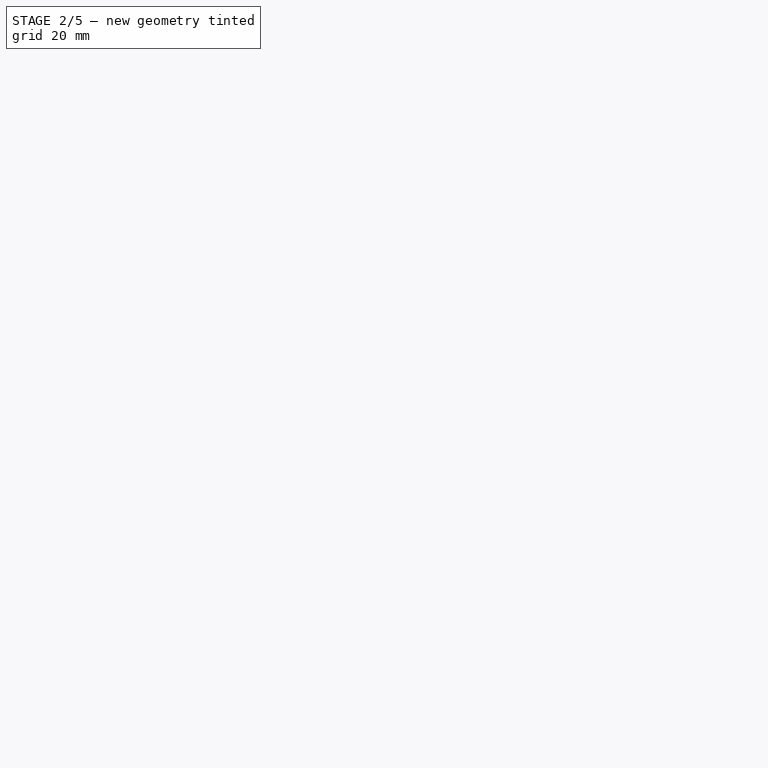
[diagram: stage 2 of 5 — iso view after this stage's code; geometry added in this stage tinted green]
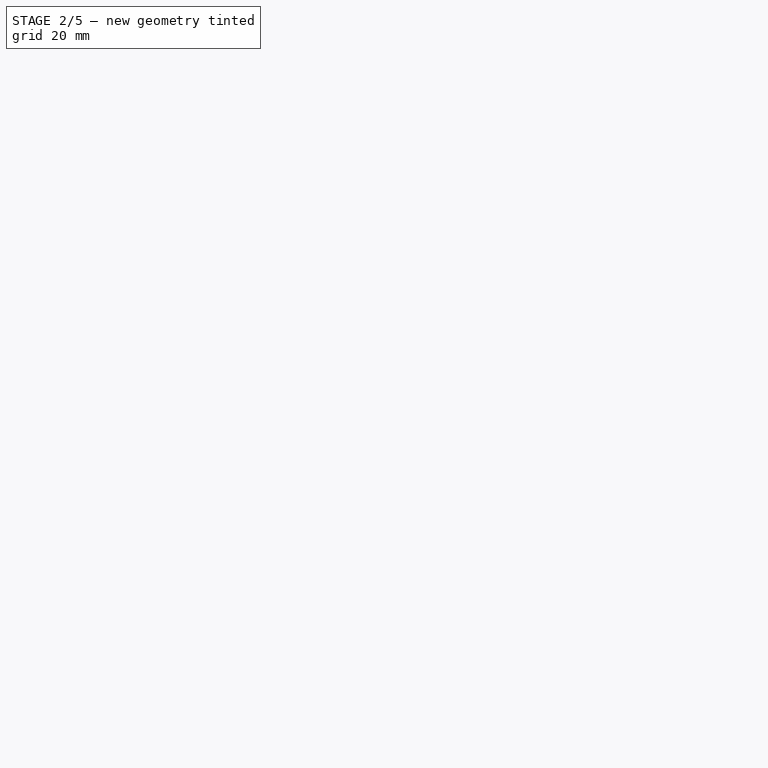
[diagram: stage 2 of 5 — front view after this stage's code; geometry added in this stage tinted green]
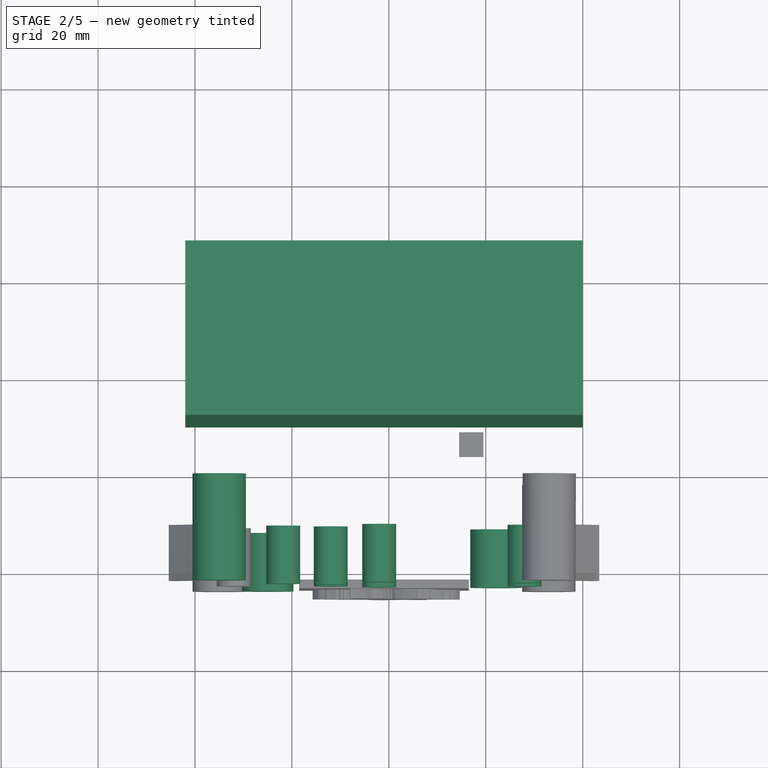
[diagram: stage 2 of 5 — top view after this stage's code; geometry added in this stage tinted green]
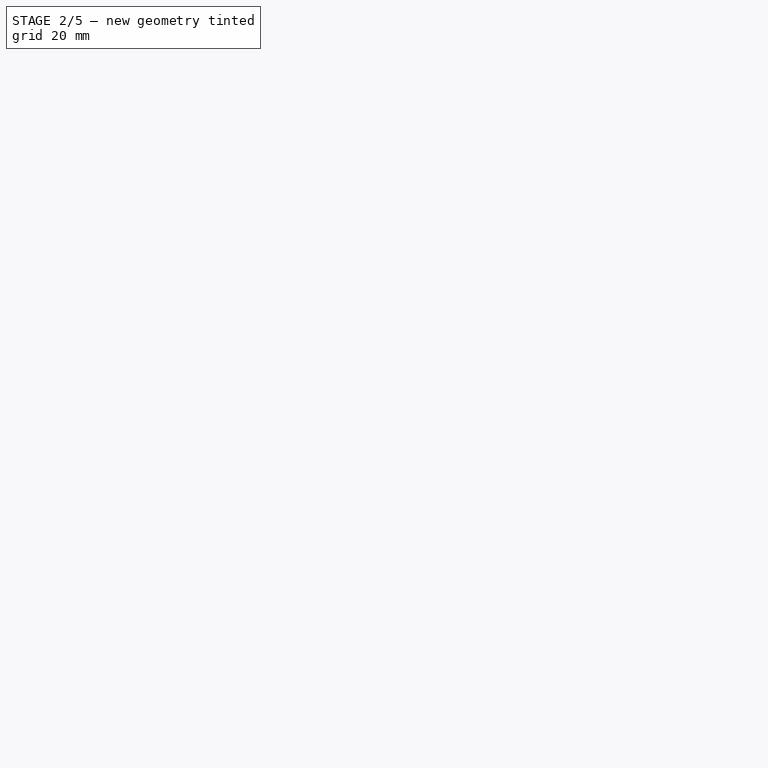
[diagram: stage 2 of 5 — right view after this stage's code; geometry added in this stage tinted green]
FEATURE [Part::Box] Box028  label="Cube023"
  AttacherType = Attacher::AttachEngine3D
  Height = 10
  Length = 10
  Placement = pos=(0,-10,0) rot=(0,0,1;0rad)
  Width = 36
FEATURE [Part::Box] Box029  label="baseOut003"
  AttacherType = Attacher::AttachEngine3D
  Height = 150
  Length = 82
  Placement = pos=(80,26,-2) rot=(0,0,1;3.14159rad)
  Width = 36
FEATURE [Part::Box] Box030  label="Cube024"
  AttacherType = Attacher::AttachEngine3D
  Height = 10
  Length = 10
  Placement = pos=(0,-10,0) rot=(0,0,1;0rad)
  Width = 36
FEATURE [Part::Box] Box031  label="Cube025"
  AttacherType = Attacher::AttachEngine3D
  Height = 10
  Length = 10
  Placement = pos=(0,-10,0) rot=(0,0,1;0rad)
  Width = 36
FEATURE [Part::Box] Box032  label="Cube026"
  AttacherType = Attacher::AttachEngine3D
  Height = 10
  Length = 10
  Placement = pos=(0,-10,0) rot=(0,0,1;0rad)
  Width = 36
FEATURE [Part::Box] Box033  label="Cube027"
  AttacherType = Attacher::AttachEngine3D
  Height = 10
  Length = 10
  Placement = pos=(0,-8,0) rot=(0,0,1;0rad)
  Width = 34
FEATURE [Part::Box] Box034  label="baseOut004"
  AttacherType = Attacher::AttachEngine3D
  Height = 146
  Length = 78
  Placement = pos=(80,26,-2) rot=(0,0,1;3.14159rad)
  Width = 34
FEATURE [Part::Box] Box035  label="Cube028"
  AttacherType = Attacher::AttachEngine3D
  Height = 10
  Length = 10
  Placement = pos=(0,-8,0) rot=(0,0,1;0rad)
  Width = 34
FEATURE [Part::Box] Box036  label="Cube029"
  AttacherType = Attacher::AttachEngine3D
  Height = 10
  Length = 10
  Placement = pos=(0,-8,0) rot=(0,0,1;0rad)
  Width = 34
FEATURE [Part::Box] Box037  label="Cube030"
  AttacherType = Attacher::AttachEngine3D
  Height = 10
  Length = 10
  Placement = pos=(0,-8,0) rot=(0,0,1;0rad)
  Width = 34
FEATURE [Part::Cylinder] Cylinder040
  Angle = 90
  AttacherType = Attacher::AttachEngine3D
  FirstAngle = 0
  Height = 36
  Placement = pos=(0,26,-5.8e-15) rot=(1,0,0;1.5708rad)
  Radius = 10
  SecondAngle = 0
FEATURE [Part::Cut] Cut025
  Base = -> Box028
  Placement = pos=(8,18,8) rot=(0.707107,0,-0.707107;3.14159rad)
  Tool = -> Cylinder040
FEATURE [Part::Cylinder] Cylinder041
  Angle = 90
  AttacherType = Attacher::AttachEngine3D
  FirstAngle = 0
  Height = 36
  Placement = pos=(0,26,-5.8e-15) rot=(1,0,0;1.5708rad)
  Radius = 10
  SecondAngle = 0
FEATURE [Part::Cut] Cut026
  Base = -> Box030
  Placement = pos=(70,18,8) rot=(1,0,0;3.14159rad)
  Tool = -> Cylinder041
FEATURE [Part::Cylinder] Cylinder042
  Angle = 90
  AttacherType = Attacher::AttachEngine3D
  FirstAngle = 0
  Height = 36
  Placement = pos=(0,26,-5.8e-15) rot=(1,0,0;1.5708rad)
  Radius = 10
  SecondAngle = 0
FEATURE [Part::Cut] Cut027
  Base = -> Box031
  Placement = pos=(8,18,138) rot=(0,0,1;3.14159rad)
  Tool = -> Cylinder042
FEATURE [Part::Cylinder] Cylinder043
  Angle = 90
  AttacherType = Attacher::AttachEngine3D
  FirstAngle = 0
  Height = 36
  Placement = pos=(0,26,-5.8e-15) rot=(1,0,0;1.5708rad)
  Radius = 10
  SecondAngle = 0
FEATURE [Part::Cut] Cut028
  Base = -> Box032
  Placement = pos=(70,18,138) rot=(0.707107,0,0.707107;3.14159rad)
  Tool = -> Cylinder043
FEATURE [Part::Cylinder] Cylinder044
  Angle = 90
  AttacherType = Attacher::AttachEngine3D
  FirstAngle = 0
  Height = 34
  Placement = pos=(0,26,-5.8e-15) rot=(1,0,0;1.5708rad)
  Radius = 10
  SecondAngle = 0
FEATURE [Part::Cut] Cut030
  Base = -> Box033
  Placement = pos=(12,18,8) rot=(0.707107,0,-0.707107;3.14159rad)
  Tool = -> Cylinder044
FEATURE [Part::Cylinder] Cylinder045
  Angle = 90
  AttacherType = Attacher::AttachEngine3D
  FirstAngle = 0
  Height = 34
  Placement = pos=(0,26,-5.8e-15) rot=(1,0,0;1.5708rad)
  Radius = 10
  SecondAngle = 0
FEATURE [Part::Cut] Cut031
  Base = -> Box035
  Placement = pos=(70,18,8) rot=(1,0,0;3.14159rad)
  Tool = -> Cylinder045
FEATURE [Part::Cylinder] Cylinder046
  Angle = 90
  AttacherType = Attacher::AttachEngine3D
  FirstAngle = 0
  Height = 34
  Placement = pos=(0,26,-5.8e-15) rot=(1,0,0;1.5708rad)
  Radius = 10
  SecondAngle = 0
FEATURE [Part::Cut] Cut032
  Base = -> Box036
  Placement = pos=(12,18,134) rot=(0,0,1;3.14159rad)
  Tool = -> Cylinder046
FEATURE [Part::Cylinder] Cylinder047
  Angle = 90
  AttacherType = Attacher::AttachEngine3D
  FirstAngle = 0
  Height = 34
  Placement = pos=(0,26,-5.8e-15) rot=(1,0,0;1.5708rad)
  Radius = 10
  SecondAngle = 0
FEATURE [Part::Cut] Cut033
  Base = -> Box037
  Placement = pos=(70,18,134) rot=(0.707107,0,0.707107;3.14159rad)
  Tool = -> Cylinder047
FEATURE [Part::MultiFuse] Fusion017
  Placement = pos=(0,-2,0) rot=(0,0,1;0rad)
  Shapes = -> [Cut025,Cut026,Cut027,Cut028]
FEATURE [Part::MultiFuse] Fusion018
  Shapes = -> [Cut030,Cut031,Cut032,Cut033]
FEATURE [Part::Cut] Cut034  label="BaseOut003"
  Base = -> Box034
  Placement = pos=(-2,-2,2) rot=(0,0,1;0rad)
  Tool = -> Fusion018
FEATURE [Part::Feature] Solid001  label="m2HeatSet"
  Placement = pos=(17.5,0,10) rot=(0,0,1;0rad)
  shape: bbox 3.655 x 4.083 x 3.655 mm, 239 faces (baked)
FEATURE [Part::Cylinder] Cylinder048
  Angle = 360
  AttacherType = Attacher::AttachEngine3D
  FirstAngle = 0
  Height = 6
  Placement = pos=(17.5,-44,10.05) rot=(-1,0,0;1.5708rad)
  Radius = 1.57
  SecondAngle = 0
FEATURE [Part::Cylinder] Cylinder049
  Angle = 360
  AttacherType = Attacher::AttachEngine3D
  FirstAngle = 0
  Height = 6
  Placement = pos=(15,-44,7.55) rot=(0.57735,0.57735,0.57735;4.18879rad)
  Radius = 5.3
  SecondAngle = 0
FEATURE [Part::Cylinder] Cylinder050
  Angle = 360
  AttacherType = Attacher::AttachEngine3D
  FirstAngle = 0
  Height = 6
  Placement = pos=(62.1,-44,50.65) rot=(0.57735,-0.57735,-0.57735;4.18879rad)
  Radius = 5.3
  SecondAngle = 0
FEATURE [Part::Cylinder] Cylinder051
  Angle = 360
  AttacherType = Attacher::AttachEngine3D
  FirstAngle = 0
  Height = 6
  Placement = pos=(59.6,-44,48.15) rot=(-1,0,0;1.5708rad)
  Radius = 1.57
  SecondAngle = 0
FEATURE [Part::Cut] Cut036
  Base = -> Cylinder049
  Tool = -> Cylinder048
FEATURE [Part::Cut] Cut037
  Base = -> Cylinder050
  Tool = -> Cylinder051
FEATURE [Part::Cylinder] Cylinder052
  Angle = 270
  AttacherType = Attacher::AttachEngine3D
  FirstAngle = 0
  Height = 6
  Placement = pos=(15,-38,7.55) rot=(-1,0,0;1.5708rad)
  Radius = 5.3
  SecondAngle = 0
FEATURE [Part::Cylinder] Cylinder053
  Angle = 270
  AttacherType = Attacher::AttachEngine3D
  FirstAngle = 0
  Height = 6
  Placement = pos=(62.1,-38,50.65) rot=(0,0.707107,0.707107;3.14159rad)
  Radius = 5.3
  SecondAngle = 0
FEATURE [Part::Cylinder] Cylinder054  label="m2HeatSet001"
  Angle = 360
  AttacherType = Attacher::AttachEngine3D
  FirstAngle = 0
  Height = 12
  Placement = pos=(8,-44,67.1) rot=(-1,0,0;1.5708rad)
  Radius = 1.6
  SecondAngle = 0
FEATURE [Part::Cylinder] Cylinder055  label="m2HeatSet002"
  Angle = 360
  AttacherType = Attacher::AttachEngine3D
  FirstAngle = 0
  Height = 12
  Placement = pos=(28,-44,67.1) rot=(-1,0,0;1.5708rad)
  Radius = 1.6
  SecondAngle = 0
FEATURE [Part::Cylinder] Cylinder056  label="m2HeatSet003"
  Angle = 360
  AttacherType = Attacher::AttachEngine3D
  FirstAngle = 0
  Height = 12
  Placement = pos=(68,-44,67.1) rot=(-1,0,0;1.5708rad)
  Radius = 1.6
  SecondAngle = 0
FEATURE [Part::Cylinder] Cylinder057  label="m2HeatSet004"
  Angle = 360
  AttacherType = Attacher::AttachEngine3D
  FirstAngle = 0
  Height = 12
  Placement = pos=(18.2,-44,97) rot=(-1,0,0;1.5708rad)
  Radius = 1.6
  SecondAngle = 0
FEATURE [Part::Cylinder] Cylinder058  label="m2HeatSet005"
  Angle = 360
  AttacherType = Attacher::AttachEngine3D
  FirstAngle = 0
  Height = 12
  Placement = pos=(28,-44,87) rot=(-1,0,0;1.5708rad)
  Radius = 1.6
  SecondAngle = 0
FEATURE [Part::Cylinder] Cylinder059  label="m2HeatSet006"
  Angle = 360
  AttacherType = Attacher::AttachEngine3D
  FirstAngle = 0
  Height = 12
  Placement = pos=(38,-44,117) rot=(-1,0,0;1.5708rad)
  Radius = 1.6
  SecondAngle = 0
FEATURE [Part::Cylinder] Cylinder060  label="m2HeatSet007"
  Angle = 360
  AttacherType = Attacher::AttachEngine3D
  FirstAngle = 0
  Height = 12
  Placement = pos=(38,-44,57) rot=(-1,0,0;1.5708rad)
  Radius = 1.6
  SecondAngle = 0
FEATURE [Part::Cylinder] Cylinder061  label="m2HeatSet008"
  Angle = 360
  AttacherType = Attacher::AttachEngine3D
  FirstAngle = 0
  Height = 12
  Placement = pos=(68,-44,107) rot=(-1,0,0;1.5708rad)
  Radius = 1.6
  SecondAngle = 0
FEATURE [Part::Cylinder] Cylinder062  label="m2HeatSetOut"
  Angle = 360
  AttacherType = Attacher::AttachEngine3D
  FirstAngle = 0
  Height = 12
  Placement = pos=(8,-44,67.1) rot=(-1,0,0;1.5708rad)
  Radius = 3.5
  SecondAngle = 0
FEATURE [Part::Cylinder] Cylinder063  label="m2HeatSetOut001"
  Angle = 360
  AttacherType = Attacher::AttachEngine3D
  FirstAngle = 0
  Height = 12
  Placement = pos=(28,-44,67.1) rot=(-1,0,0;1.5708rad)
  Radius = 3.5
  SecondAngle = 0
FEATURE [Part::Cylinder] Cylinder064  label="m2HeatSetOut002"
  Angle = 360
  AttacherType = Attacher::AttachEngine3D
  FirstAngle = 0
  Height = 12
  Placement = pos=(18.2,-44,97) rot=(-1,0,0;1.5708rad)
  Radius = 3.5
  SecondAngle = 0
FEATURE [Part::Cylinder] Cylinder065  label="m2HeatSetOut003"
  Angle = 360
  AttacherType = Attacher::AttachEngine3D
  FirstAngle = 0
  Height = 12
  Placement = pos=(68,-44,67.1) rot=(-1,0,0;1.5708rad)
  Radius = 3.5
  SecondAngle = 0
FEATURE [Part::Cylinder] Cylinder066  label="m2HeatSetOut004"
  Angle = 360
  AttacherType = Attacher::AttachEngine3D
  FirstAngle = 0
  Height = 12
  Placement = pos=(28,-44,87) rot=(-1,0,0;1.5708rad)
  Radius = 3.5
  SecondAngle = 0
FEATURE [Part::Cylinder] Cylinder067  label="m2HeatSetOut005"
  Angle = 360
  AttacherType = Attacher::AttachEngine3D
  FirstAngle = 0
  Height = 12
  Placement = pos=(38,-44,57) rot=(-1,0,0;1.5708rad)
  Radius = 3.5
  SecondAngle = 0
FEATURE [Part::Cylinder] Cylinder068  label="m2HeatSetOut006"
  Angle = 360
  AttacherType = Attacher::AttachEngine3D
  FirstAngle = 0
  Height = 12
  Placement = pos=(68,-44,107) rot=(-1,0,0;1.5708rad)
  Radius = 3.5
  SecondAngle = 0
FEATURE [Part::Cylinder] Cylinder069  label="m2HeatSetOut007"
  Angle = 360
  AttacherType = Attacher::AttachEngine3D
  FirstAngle = 0
  Height = 12
  Placement = pos=(38,-44,117) rot=(-1,0,0;1.5708rad)
  Radius = 3.5
  SecondAngle = 0
FEATURE [Part::MultiFuse] Fusion021  label="m2HeatSetCuts"
  Shapes = -> [Cylinder062,Cylinder054,Cylinder055,Cylinder056,Cylinder057,Cylinder058,Cylinder059,Cylinder060,Cylinder061]
FEATURE [Part::Feature] Solid002  label="M4Screw"
  Placement = pos=(73,-30,5) rot=(0.57735,-0.57735,0.57735;2.0944rad)
  shape: bbox 7.001 x 54.15 x 7.001 mm, 147 faces (baked)
FEATURE [Part::Feature] Solid003  label="M4Screw001"
  Placement = pos=(5,-30,5) rot=(0.57735,-0.57735,0.57735;2.0944rad)
  shape: bbox 7.001 x 54.15 x 7.001 mm, 147 faces (baked)
FEATURE [Part::Feature] Solid004  label="M4Screw002"
  Placement = pos=(5,-30,141) rot=(0.57735,-0.57735,0.57735;2.0944rad)
  shape: bbox 7.001 x 54.15 x 7.001 mm, 147 faces (baked)
FEATURE [Part::Feature] Solid005  label="M4Screw003"
  Placement = pos=(73,-30,141) rot=(0.57735,-0.57735,0.57735;2.0944rad)
  shape: bbox 7.001 x 54.15 x 7.001 mm, 147 faces (baked)
FEATURE [Part::Cylinder] Cylinder072  label="m4HoleBase"
  Angle = 360
  AttacherType = Attacher::AttachEngine3D
  FirstAngle = 0
  Height = 22
  Placement = pos=(4.5,-44,141.5) rot=(0.377964,0.654654,0.654654;3.86433rad)
  Radius = 5.5
  SecondAngle = 0
FEATURE [Part::Cut] Cut039  label="m4HeatSetHoles"
  Base = -> Cylinder072
  Placement = pos=(0.5,0,-0.5) rot=(0,0,1;0rad)
  Tool = -> Cylinder073
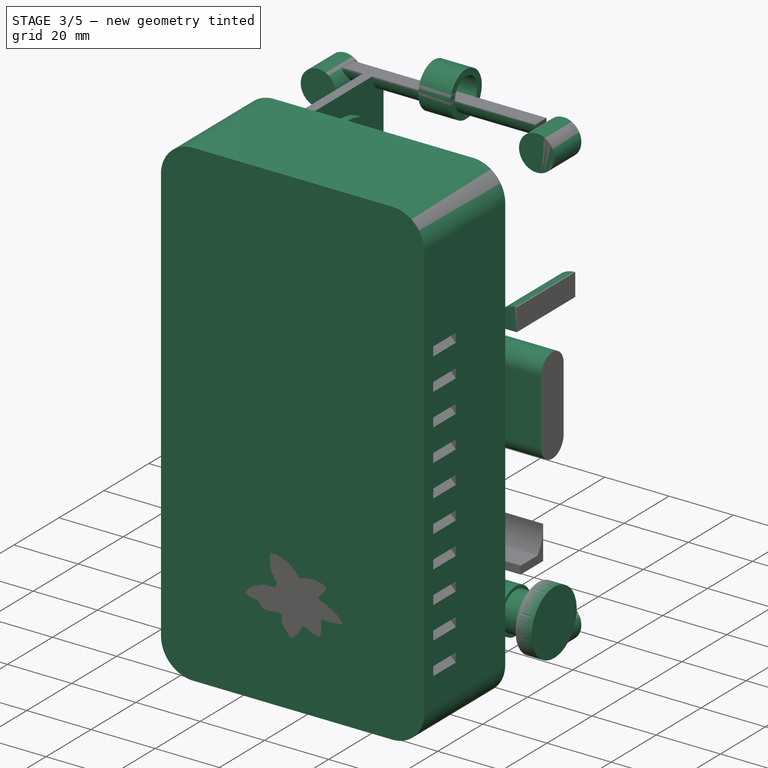
[diagram: stage 3 of 5 — iso view after this stage's code; geometry added in this stage tinted green]
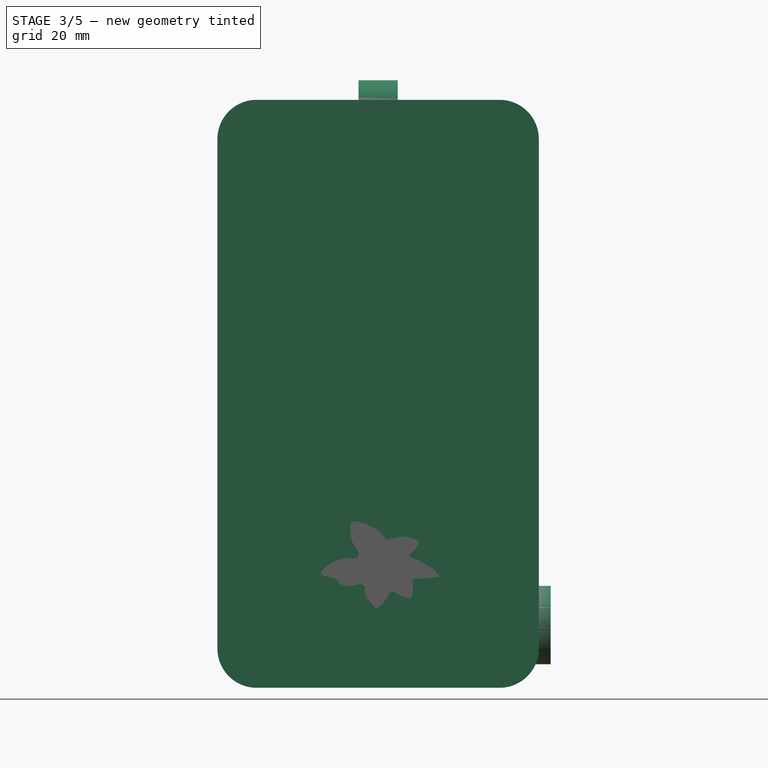
[diagram: stage 3 of 5 — front view after this stage's code; geometry added in this stage tinted green]
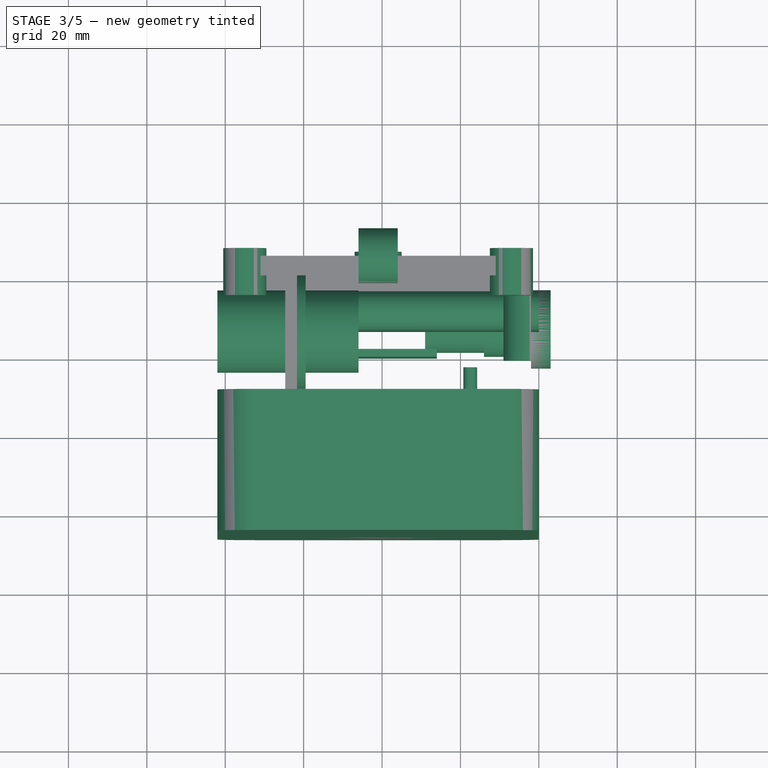
[diagram: stage 3 of 5 — top view after this stage's code; geometry added in this stage tinted green]
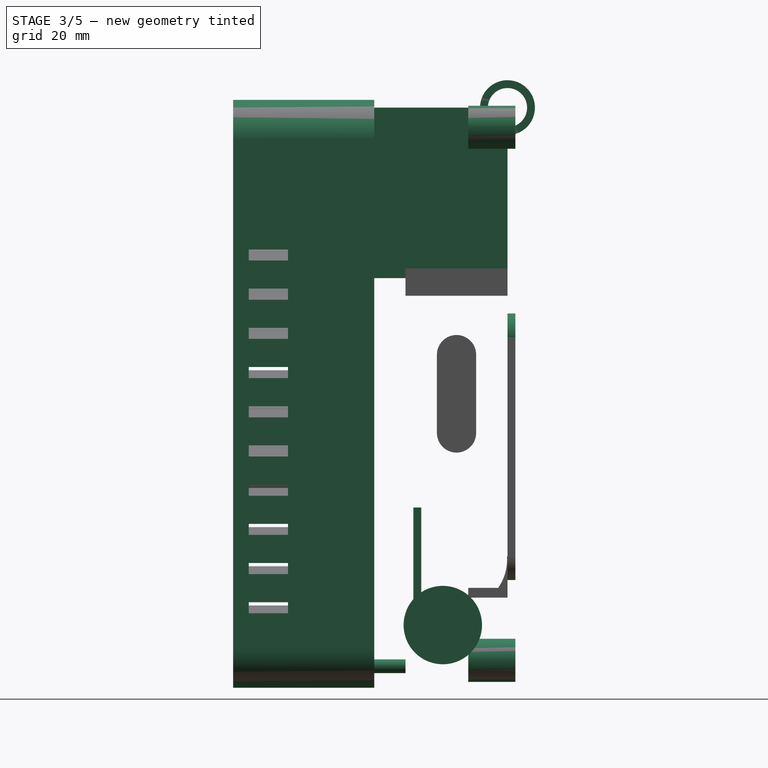
[diagram: stage 3 of 5 — right view after this stage's code; geometry added in this stage tinted green]
FEATURE [Part::Cylinder] Cylinder024
  Angle = 360
  AttacherType = Attacher::AttachEngine3D
  FirstAngle = 0
  Height = 8
  Placement = pos=(62.5,-2,3.5) rot=(1,0,0;1.5708rad)
  Radius = 1.75
  SecondAngle = 0
FEATURE [Part::Cylinder] Cylinder025
  Angle = 360
  AttacherType = Attacher::AttachEngine3D
  FirstAngle = 0
  Height = 20
  Radius = 6
  SecondAngle = 0
FEATURE [Part::Cylinder] Cylinder026
  Angle = 360
  AttacherType = Attacher::AttachEngine3D
  FirstAngle = 0
  Height = 5
  Radius = 7
  SecondAngle = 0
FEATURE [Part::MultiFuse] Fusion007  label="powerSwitch"
  Placement = pos=(71,7.5,14) rot=(0,-1,0;1.5708rad)
  Shapes = -> [Cylinder025,Cylinder026]
FEATURE [Part::Cylinder] Cylinder027  label="mainMounts"
  Angle = 90
  AttacherType = Attacher::AttachEngine3D
  FirstAngle = 0
  Height = 26
  Placement = pos=(0,24,98) rot=(1,0,0;1.5708rad)
  Radius = 7
  SecondAngle = 0
FEATURE [Part::Cylinder] Cylinder028  label="mainMounts001"
  Angle = 90
  AttacherType = Attacher::AttachEngine3D
  FirstAngle = 0
  Height = 26
  Placement = pos=(78,24,98) rot=(0.57735,-0.57735,0.57735;2.0944rad)
  Radius = 7
  SecondAngle = 0
FEATURE [Part::MultiFuse] Fusion012
  Shapes = -> [Cylinder028,Cylinder027]
FEATURE [Part::Cut] Cut029  label="BaseOut002"
  Base = -> Box029
  Tool = -> Fusion017
FEATURE [Part::Cut] Cut035  label="baseTop"
  Base = -> Cut029
  Placement = pos=(78,-20,0) rot=(0,0,1;3.14159rad)
  Tool = -> Cut034
FEATURE [Part::MultiFuse] Fusion019  label="baseTop001"
  Shapes = -> [Cut036,Cut037,Cylinder052,Cylinder053,Cut035]
FEATURE [Part::MultiFuse] Fusion020  label="baseTop002"
  Shapes = -> [Cylinder069,Cylinder063,Cylinder064,Cylinder065,Cylinder066,Cylinder067,Cylinder068,Fusion019]
FEATURE [Part::Cut] Cut038  label="baseTop003"
  Base = -> Fusion020
  Tool = -> Fusion021
FEATURE [Part::MultiFuse] Fusion023  label="baseTop004"
  Shapes = -> [Cut039,Cut040,Cut041,Cut042,Cut038]
FEATURE [Part::MultiFuse] Fusion024  label="baseTop005"
  Shapes = -> [Fusion023,Cut043]
FEATURE [Part::Cylinder] Cylinder084  label="m4HoleBase006"
  Angle = 360
  AttacherType = Attacher::AttachEngine3D
  FirstAngle = 0
  Height = 12
  Placement = pos=(73,26,5) rot=(0,0.707107,-0.707107;3.14159rad)
  Radius = 5.5
  SecondAngle = 0
FEATURE [Part::Cylinder] Cylinder085  label="m4HoleBaseCut"
  Angle = 360
  AttacherType = Attacher::AttachEngine3D
  FirstAngle = 0
  Height = 7
  Placement = pos=(73,26,5) rot=(0,0.707107,-0.707107;3.14159rad)
  Radius = 3.75
  SecondAngle = 0
FEATURE [Part::Cylinder] Cylinder086  label="m4HoleBase007"
  Angle = 360
  AttacherType = Attacher::AttachEngine3D
  FirstAngle = 0
  Height = 12
  Placement = pos=(5,26,5) rot=(0,0.707107,-0.707107;3.14159rad)
  Radius = 5.5
  SecondAngle = 0
FEATURE [Part::Cylinder] Cylinder087  label="m4HoleBaseCut001"
  Angle = 360
  AttacherType = Attacher::AttachEngine3D
  FirstAngle = 0
  Height = 7
  Placement = pos=(5,26,5) rot=(0,0.707107,-0.707107;3.14159rad)
  Radius = 3.75
  SecondAngle = 0
FEATURE [Part::Cylinder] Cylinder088  label="m4HoleBase008"
  Angle = 360
  AttacherType = Attacher::AttachEngine3D
  FirstAngle = 0
  Height = 12
  Placement = pos=(73,26,141) rot=(0,0.707107,-0.707107;3.14159rad)
  Radius = 5.5
  SecondAngle = 0
FEATURE [Part::Cylinder] Cylinder089  label="m4HoleBaseCut002"
  Angle = 360
  AttacherType = Attacher::AttachEngine3D
  FirstAngle = 0
  Height = 7
  Placement = pos=(73,26,141) rot=(0,0.707107,-0.707107;3.14159rad)
  Radius = 3.75
  SecondAngle = 0
FEATURE [Part::Cylinder] Cylinder090  label="m4HoleBase009"
  Angle = 360
  AttacherType = Attacher::AttachEngine3D
  FirstAngle = 0
  Height = 12
  Placement = pos=(5,26,141) rot=(0,0.707107,-0.707107;3.14159rad)
  Radius = 5.5
  SecondAngle = 0
FEATURE [Part::Cylinder] Cylinder091  label="m4HoleBaseCut003"
  Angle = 360
  AttacherType = Attacher::AttachEngine3D
  FirstAngle = 0
  Height = 7
  Placement = pos=(5,26,141) rot=(0,0.707107,-0.707107;3.14159rad)
  Radius = 3.75
  SecondAngle = 0
FEATURE [Part::MultiFuse] Fusion026  label="m4Cuts"
  Shapes = -> [Cylinder085,Cylinder087,Cylinder089,Cylinder091]
FEATURE [Part::Cylinder] Cylinder092  label="m4HoleBaseCut004"
  Angle = 360
  AttacherType = Attacher::AttachEngine3D
  FirstAngle = 0
  Height = 7
  Placement = pos=(73,26,5) rot=(0,0.707107,-0.707107;3.14159rad)
  Radius = 2.1
  SecondAngle = 0
FEATURE [Part::Cylinder] Cylinder093  label="m4HoleBaseCut005"
  Angle = 360
  AttacherType = Attacher::AttachEngine3D
  FirstAngle = 0
  Height = 7
  Placement = pos=(5,26,5) rot=(0,0.707107,-0.707107;3.14159rad)
  Radius = 2.1
  SecondAngle = 0
FEATURE [Part::Cylinder] Cylinder094  label="m4HoleBaseCut006"
  Angle = 360
  AttacherType = Attacher::AttachEngine3D
  FirstAngle = 0
  Height = 7
  Placement = pos=(73,26,141) rot=(0,0.707107,-0.707107;3.14159rad)
  Radius = 2.1
  SecondAngle = 0
FEATURE [Part::Cylinder] Cylinder095  label="m4HoleBaseCut007"
  Angle = 360
  AttacherType = Attacher::AttachEngine3D
  FirstAngle = 0
  Height = 7
  Placement = pos=(5,26,141) rot=(0,0.707107,-0.707107;3.14159rad)
  Radius = 2.1
  SecondAngle = 0
FEATURE [Part::MultiFuse] Fusion027  label="m4Cuts001"
  Placement = pos=(0,-5,0) rot=(0,0,1;0rad)
  Shapes = -> [Cylinder092,Cylinder093,Cylinder094,Cylinder095]
FEATURE [Part::Cylinder] Cylinder096
  Angle = 360
  AttacherType = Attacher::AttachEngine3D
  FirstAngle = 0
  Height = 20
  Radius = 6
  SecondAngle = 0
FEATURE [Part::Cylinder] Cylinder097
  Angle = 360
  AttacherType = Attacher::AttachEngine3D
  FirstAngle = 0
  Height = 5
  Radius = 10
  SecondAngle = 0
FEATURE [Part::MultiFuse] Fusion028  label="Switch"
  Placement = pos=(83,7.5,14) rot=(0,-1,0;1.5708rad)
  Shapes = -> [Cylinder096,Cylinder097]
FEATURE [Part::Cylinder] Cylinder098  label="Ethernet"
  Angle = 360
  AttacherType = Attacher::AttachEngine3D
  FirstAngle = 0
  Height = 36
  Radius = 10.5
  SecondAngle = 0
FEATURE [Part::Cylinder] Cylinder099  label="Ethernet001"
  Angle = 360
  AttacherType = Attacher::AttachEngine3D
  FirstAngle = 0
  Height = 2.25
  Placement = pos=(0,0,13.5) rot=(0,0,1;0rad)
  Radius = 15
  SecondAngle = 0
FEATURE [Part::MultiFuse] Fusion029  label="EthenetCut"
  Placement = pos=(34,5,124.5) rot=(0,-1,0;1.5708rad)
  Shapes = -> [Cylinder098,Cylinder099]
FEATURE [Part::Box] Box038  label="ethernetHold"
  AttacherType = Attacher::AttachEngine3D
  Height = 34
  Length = 3
  Placement = pos=(15.3,24,102.5) rot=(1,0,0;1.5708rad)
  Width = 43.5
FEATURE [Part::Cylinder] Cylinder102  label="hookReinforment"
  Angle = 90
  AttacherType = Attacher::AttachEngine3D
  FirstAngle = 0
  Height = 60
  Placement = pos=(9,24,146) rot=(0.57735,-0.57735,0.57735;4.18879rad)
  Radius = 5
  SecondAngle = 0
FEATURE [Part::FeaturePython] Tube  label="hookCut"  # WARN: FeaturePython — macro-defined, semantics opaque (R4)
  AttacherType = Attacher::AttachEngine3D
  Height = 10
  InnerRadius = 5
  OuterRadius = 7
  Placement = pos=(34,24,146) rot=(0,1,0;1.5708rad)
FEATURE [Part::MultiFuse] Fusion033  label="baseBottomCuts"
  Shapes = -> [Fusion029,Fusion028,Tube]
FEATURE [Part::Box] Box039  label="usbCut"
  AttacherType = Attacher::AttachEngine3D
  Height = 10
  Length = 82
  Width = 30
FEATURE [Part::Cylinder] Cylinder103
  Angle = 180
  AttacherType = Attacher::AttachEngine3D
  FirstAngle = 0
  Height = 82
  Placement = pos=(0,5,5) rot=(0.707107,0,0.707107;3.14159rad)
  Radius = 5
  SecondAngle = 0
FEATURE [Part::Box] Box040  label="Cube032"
  AttacherType = Attacher::AttachEngine3D
  Height = 10
  Length = 82
  Width = 5
FEATURE [Part::Cut] Cut047  label="cornerCuts"
  Base = -> Box040
  Tool = -> Cylinder103
FEATURE [Part::Box] Box041  label="Cube033"
  AttacherType = Attacher::AttachEngine3D
  Height = 10
  Length = 82
  Width = 5
FEATURE [Part::Cylinder] Cylinder104
  Angle = 180
  AttacherType = Attacher::AttachEngine3D
  FirstAngle = 0
  Height = 82
  Placement = pos=(0,5,5) rot=(0.707107,0,0.707107;3.14159rad)
  Radius = 5
  SecondAngle = 0
FEATURE [Part::Cut] Cut048  label="cornerCuts001"
  Base = -> Box041
  Placement = pos=(0,30,10) rot=(1,0,0;3.14159rad)
  Tool = -> Cylinder104
FEATURE [Part::MultiFuse] Fusion034
  Shapes = -> [Cut047,Cut048]
FEATURE [Part::Cut] Cut049  label="usbCut001"
  Base = -> Box039
  Placement = pos=(-2,16,58) rot=(1,0,0;1.5708rad)
  Tool = -> Fusion034
FEATURE [Part::Box] Box042  label="Cube034"
  AttacherType = Attacher::AttachEngine3D
  Height = 56
  Length = 12
  Width = 2
FEATURE [Part::Cylinder] Cylinder105
  Angle = 360
  AttacherType = Attacher::AttachEngine3D
  FirstAngle = 0
  Height = 2
  Placement = pos=(6,0,0) rot=(0,0.707107,0.707107;3.14159rad)
  Radius = 6
  SecondAngle = 0
FEATURE [Part::Cylinder] Cylinder106
  Angle = 360
  AttacherType = Attacher::AttachEngine3D
  FirstAngle = 0
  Height = 2
  Placement = pos=(6,1.2e-14,56) rot=(0,0.707107,0.707107;3.14159rad)
  Radius = 6
  SecondAngle = 0
FEATURE [Part::MultiFuse] Fusion035  label="voltaicCut"
  Placement = pos=(33,24,31.5) rot=(0,0,1;0rad)
  Shapes = -> [Cylinder106,Cylinder105,Box042]
FEATURE [Part::Cut] Cut052  label="baseTop006"
  Base = -> Fusion024
  Tool = -> Box043
FEATURE [Part::Box] Box044  label="Cube035"
  AttacherType = Attacher::AttachEngine3D
  Height = 30
  Length = 30
  Placement = pos=(24,0,14) rot=(0,0,1;0rad)
  Width = 2
FEATURE [Part::Cut] Cut053  label="baseTop007"
  Base = -> Cut052
  Tool = -> Fusion038
FEATURE [Part::Cut] Cut054  label="baseTop008"
  Base = -> Cut053
  Tool = -> Fusion039
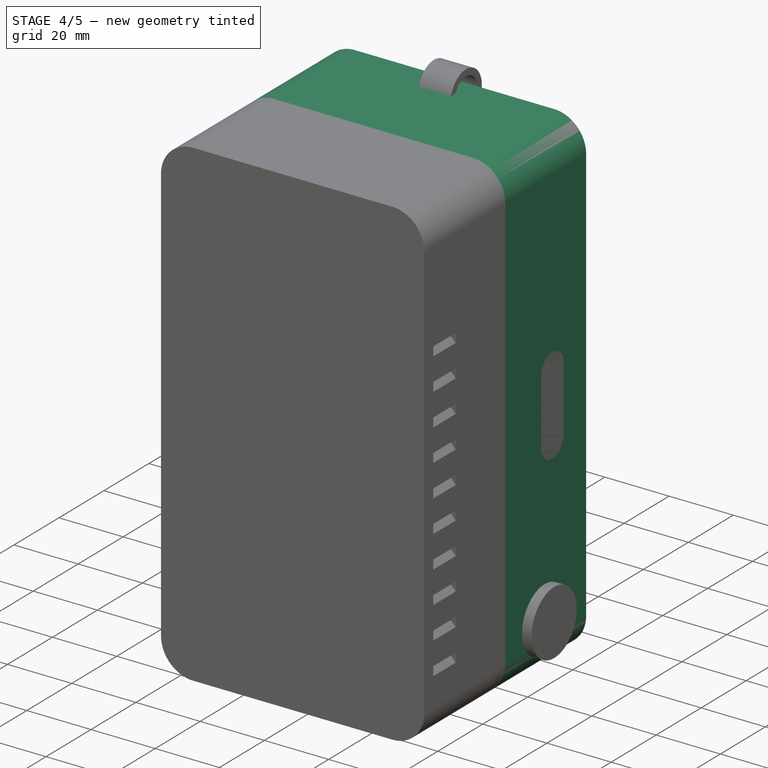
[diagram: stage 4 of 5 — iso view after this stage's code; geometry added in this stage tinted green]
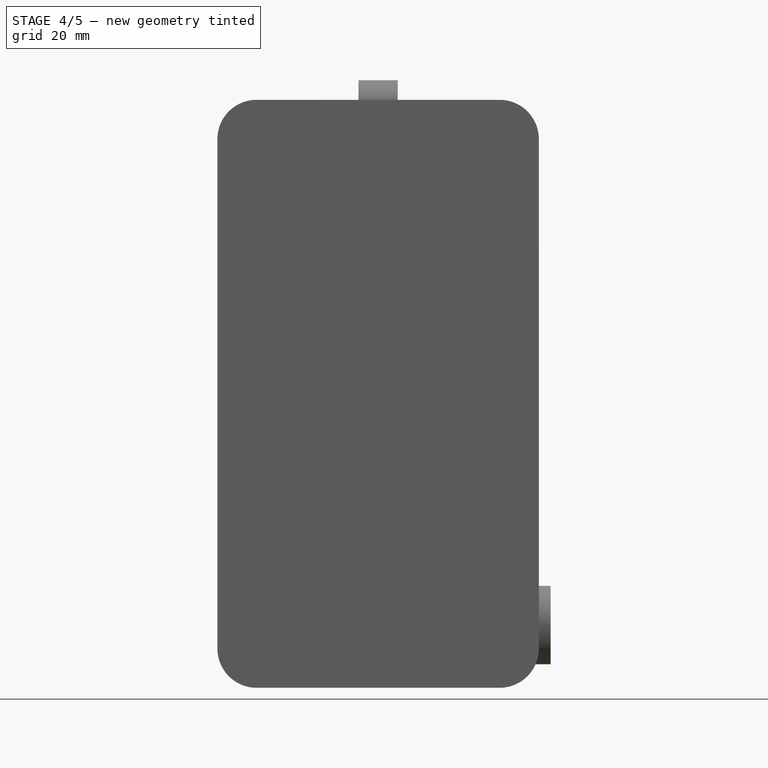
[diagram: stage 4 of 5 — front view after this stage's code; geometry added in this stage tinted green]
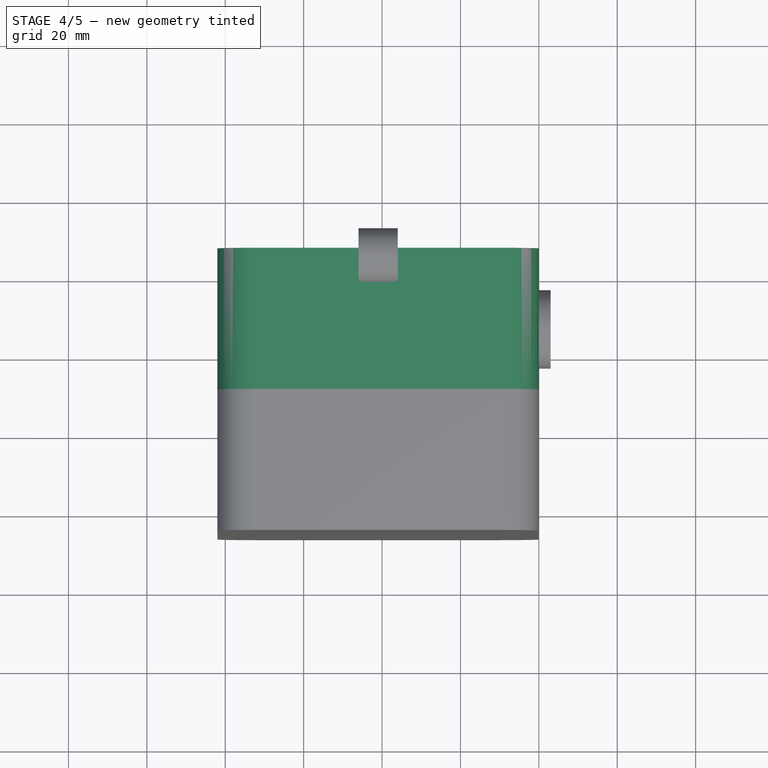
[diagram: stage 4 of 5 — top view after this stage's code; geometry added in this stage tinted green]
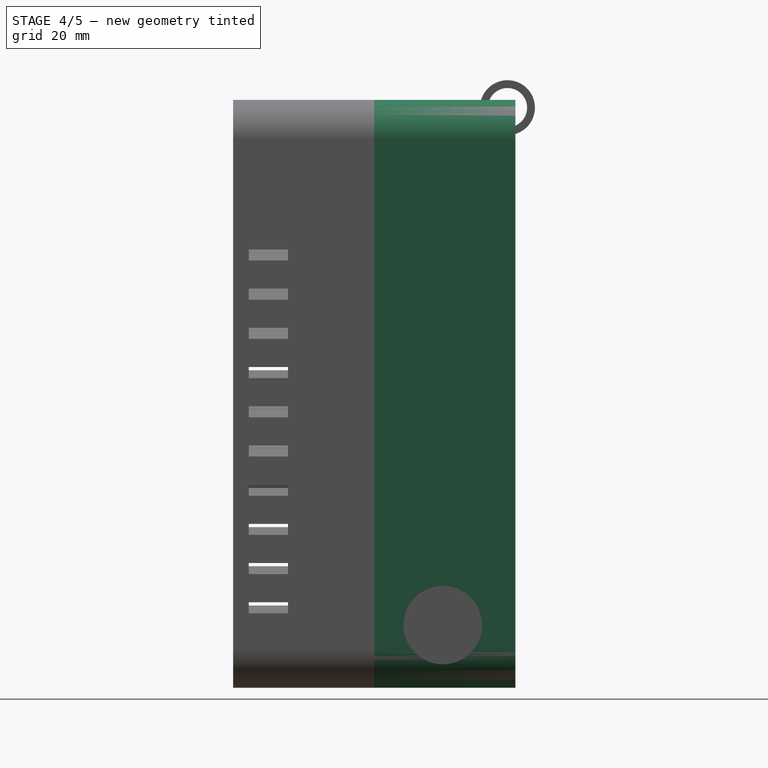
[diagram: stage 4 of 5 — right view after this stage's code; geometry added in this stage tinted green]
FEATURE [Part::Box] Box007  label="Cube004"
  AttacherType = Attacher::AttachEngine3D
  Height = 10
  Length = 10
  Placement = pos=(0,-10,0) rot=(0,0,1;0rad)
  Width = 36
FEATURE [Part::Cylinder] Cylinder008
  Angle = 90
  AttacherType = Attacher::AttachEngine3D
  FirstAngle = 0
  Height = 36
  Placement = pos=(0,26,-5.8e-15) rot=(1,0,0;1.5708rad)
  Radius = 10
  SecondAngle = 0
FEATURE [Part::Cut] Cut006
  Base = -> Box007
  Placement = pos=(8,18,8) rot=(0.707107,0,-0.707107;3.14159rad)
  Tool = -> Cylinder008
FEATURE [Part::Box] Box008  label="baseOut001"
  AttacherType = Attacher::AttachEngine3D
  Height = 150
  Length = 82
  Placement = pos=(80,26,-2) rot=(0,0,1;3.14159rad)
  Width = 36
FEATURE [Part::Box] Box009  label="Cube005"
  AttacherType = Attacher::AttachEngine3D
  Height = 10
  Length = 10
  Placement = pos=(0,-10,0) rot=(0,0,1;0rad)
  Width = 36
FEATURE [Part::Cylinder] Cylinder009
  Angle = 90
  AttacherType = Attacher::AttachEngine3D
  FirstAngle = 0
  Height = 36
  Placement = pos=(0,26,-5.8e-15) rot=(1,0,0;1.5708rad)
  Radius = 10
  SecondAngle = 0
FEATURE [Part::Cut] Cut007
  Base = -> Box009
  Placement = pos=(70,18,8) rot=(1,0,0;3.14159rad)
  Tool = -> Cylinder009
FEATURE [Part::Box] Box010  label="Cube006"
  AttacherType = Attacher::AttachEngine3D
  Height = 10
  Length = 10
  Placement = pos=(0,-10,0) rot=(0,0,1;0rad)
  Width = 36
FEATURE [Part::Cylinder] Cylinder010
  Angle = 90
  AttacherType = Attacher::AttachEngine3D
  FirstAngle = 0
  Height = 36
  Placement = pos=(0,26,-5.8e-15) rot=(1,0,0;1.5708rad)
  Radius = 10
  SecondAngle = 0
FEATURE [Part::Cut] Cut008
  Base = -> Box010
  Placement = pos=(8,18,138) rot=(0,0,1;3.14159rad)
  Tool = -> Cylinder010
FEATURE [Part::Box] Box011  label="Cube007"
  AttacherType = Attacher::AttachEngine3D
  Height = 10
  Length = 10
  Placement = pos=(0,-10,0) rot=(0,0,1;0rad)
  Width = 36
FEATURE [Part::Cylinder] Cylinder011
  Angle = 90
  AttacherType = Attacher::AttachEngine3D
  FirstAngle = 0
  Height = 36
  Placement = pos=(0,26,-5.8e-15) rot=(1,0,0;1.5708rad)
  Radius = 10
  SecondAngle = 0
FEATURE [Part::Cut] Cut009
  Base = -> Box011
  Placement = pos=(70,18,138) rot=(0.707107,0,0.707107;3.14159rad)
  Tool = -> Cylinder011
FEATURE [Part::MultiFuse] Fusion005
  Placement = pos=(0,-2,0) rot=(0,0,1;0rad)
  Shapes = -> [Cut006,Cut007,Cut008,Cut009]
FEATURE [Part::Cut] Cut010  label="BaseOut"
  Base = -> Box008
  Tool = -> Fusion005
FEATURE [Part::Box] Box013  label="Cube009"
  AttacherType = Attacher::AttachEngine3D
  Height = 10
  Length = 10
  Placement = pos=(0,-8,0) rot=(0,0,1;0rad)
  Width = 34
FEATURE [Part::Box] Box014  label="baseOut002"
  AttacherType = Attacher::AttachEngine3D
  Height = 146
  Length = 78
  Placement = pos=(80,26,-2) rot=(0,0,1;3.14159rad)
  Width = 34
FEATURE [Part::Box] Box015  label="Cube010"
  AttacherType = Attacher::AttachEngine3D
  Height = 10
  Length = 10
  Placement = pos=(0,-8,0) rot=(0,0,1;0rad)
  Width = 34
FEATURE [Part::Box] Box016  label="Cube011"
  AttacherType = Attacher::AttachEngine3D
  Height = 10
  Length = 10
  Placement = pos=(0,-8,0) rot=(0,0,1;0rad)
  Width = 34
FEATURE [Part::Box] Box017  label="Cube012"
  AttacherType = Attacher::AttachEngine3D
  Height = 10
  Length = 10
  Placement = pos=(0,-8,0) rot=(0,0,1;0rad)
  Width = 34
FEATURE [Part::Cylinder] Cylinder013
  Angle = 90
  AttacherType = Attacher::AttachEngine3D
  FirstAngle = 0
  Height = 34
  Placement = pos=(0,26,-5.8e-15) rot=(1,0,0;1.5708rad)
  Radius = 10
  SecondAngle = 0
FEATURE [Part::Cut] Cut012
  Base = -> Box013
  Placement = pos=(12,18,8) rot=(0.707107,0,-0.707107;3.14159rad)
  Tool = -> Cylinder013
FEATURE [Part::Cylinder] Cylinder014
  Angle = 90
  AttacherType = Attacher::AttachEngine3D
  FirstAngle = 0
  Height = 34
  Placement = pos=(0,26,-5.8e-15) rot=(1,0,0;1.5708rad)
  Radius = 10
  SecondAngle = 0
FEATURE [Part::Cut] Cut013
  Base = -> Box015
  Placement = pos=(70,18,8) rot=(1,0,0;3.14159rad)
  Tool = -> Cylinder014
FEATURE [Part::Cylinder] Cylinder015
  Angle = 90
  AttacherType = Attacher::AttachEngine3D
  FirstAngle = 0
  Height = 34
  Placement = pos=(0,26,-5.8e-15) rot=(1,0,0;1.5708rad)
  Radius = 10
  SecondAngle = 0
FEATURE [Part::Cut] Cut014
  Base = -> Box016
  Placement = pos=(12,18,134) rot=(0,0,1;3.14159rad)
  Tool = -> Cylinder015
FEATURE [Part::Cylinder] Cylinder016
  Angle = 90
  AttacherType = Attacher::AttachEngine3D
  FirstAngle = 0
  Height = 34
  Placement = pos=(0,26,-5.8e-15) rot=(1,0,0;1.5708rad)
  Radius = 10
  SecondAngle = 0
FEATURE [Part::Cut] Cut015
  Base = -> Box017
  Placement = pos=(70,18,134) rot=(0.707107,0,0.707107;3.14159rad)
  Tool = -> Cylinder016
FEATURE [Part::MultiFuse] Fusion006
  Shapes = -> [Cut012,Cut013,Cut014,Cut015]
FEATURE [Part::Cut] Cut016  label="BaseOut001"
  Base = -> Box014
  Placement = pos=(-2,-2,2) rot=(0,0,1;0rad)
  Tool = -> Fusion006
FEATURE [Part::Cut] Cut017  label="baseOut"
  Base = -> Cut010
  Tool = -> Cut016
FEATURE [Part::Box] Box018  label="Cube013"
  AttacherType = Attacher::AttachEngine3D
  Height = 10
  Length = 10
  Placement = pos=(10,26,0) rot=(0,0,1;3.14159rad)
  Width = 26
FEATURE [Part::Cylinder] Cylinder017
  Angle = 90
  AttacherType = Attacher::AttachEngine3D
  FirstAngle = 0
  Height = 26
  Placement = pos=(0,26,-5.8e-15) rot=(1,0,0;1.5708rad)
  Radius = 10
  SecondAngle = 0
FEATURE [Part::Cut] Cut018  label="batterySupport"
  Base = -> Box018
  Placement = pos=(10,-2,31) rot=(0,1,0;3.14159rad)
  Tool = -> Cylinder017
FEATURE [Part::Box] Box019  label="Cube014"
  AttacherType = Attacher::AttachEngine3D
  Height = 10
  Length = 10
  Placement = pos=(10,26,0) rot=(0,0,1;3.14159rad)
  Width = 26
FEATURE [Part::Cylinder] Cylinder018
  Angle = 90
  AttacherType = Attacher::AttachEngine3D
  FirstAngle = 0
  Height = 26
  Placement = pos=(0,26,-5.8e-15) rot=(1,0,0;1.5708rad)
  Radius = 10
  SecondAngle = 0
FEATURE [Part::Cut] Cut019  label="batterySupport001"
  Base = -> Box019
  Placement = pos=(68,-2,31) rot=(0,1,0;1.5708rad)
  Tool = -> Cylinder018
FEATURE [Part::Box] Box020  label="Cube015"
  AttacherType = Attacher::AttachEngine3D
  Height = 10
  Length = 10
  Placement = pos=(10,26,0) rot=(0,0,1;3.14159rad)
  Width = 26
FEATURE [Part::Cylinder] Cylinder019
  Angle = 90
  AttacherType = Attacher::AttachEngine3D
  FirstAngle = 0
  Height = 26
  Placement = pos=(0,26,-5.8e-15) rot=(1,0,0;1.5708rad)
  Radius = 10
  SecondAngle = 0
FEATURE [Part::Cut] Cut020  label="batterySupport002"
  Base = -> Box020
  Placement = pos=(68,-2,88) rot=(0,0,1;0rad)
  Tool = -> Cylinder019
FEATURE [Part::Box] Box021  label="Cube016"
  AttacherType = Attacher::AttachEngine3D
  Height = 10
  Length = 10
  Placement = pos=(10,26,0) rot=(0,0,1;3.14159rad)
  Width = 26
FEATURE [Part::Cylinder] Cylinder020
  Angle = 90
  AttacherType = Attacher::AttachEngine3D
  FirstAngle = 0
  Height = 26
  Placement = pos=(0,26,-5.8e-15) rot=(1,0,0;1.5708rad)
  Radius = 10
  SecondAngle = 0
FEATURE [Part::Cut] Cut021  label="batterySupport003"
  Base = -> Box021
  Placement = pos=(10,-2,88) rot=(0,-1,0;1.5708rad)
  Tool = -> Cylinder020
FEATURE [Part::Cylinder] Cylinder021
  Angle = 360
  AttacherType = Attacher::AttachEngine3D
  FirstAngle = 0
  Height = 34
  Placement = pos=(13.5,24,3.5) rot=(1,0,0;1.5708rad)
  Radius = 3.5
  SecondAngle = 0
FEATURE [Part::Cylinder] Cylinder022
  Angle = 360
  AttacherType = Attacher::AttachEngine3D
  FirstAngle = 0
  Height = 8
  Placement = pos=(13.5,-2,3.5) rot=(1,0,0;1.5708rad)
  Radius = 1.75
  SecondAngle = 0
FEATURE [Part::Box] Box022  label="Cube017"
  AttacherType = Attacher::AttachEngine3D
  Height = 3.5
  Length = 7
  Placement = pos=(10,24,3.5) rot=(1,0,0;3.14159rad)
  Width = 34
FEATURE [Part::Cylinder] Cylinder023
  Angle = 360
  AttacherType = Attacher::AttachEngine3D
  FirstAngle = 0
  Height = 34
  Placement = pos=(62.5,24,3.5) rot=(1,0,0;1.5708rad)
  Radius = 3.5
  SecondAngle = 0
FEATURE [Part::Box] Box023  label="Cube018"
  AttacherType = Attacher::AttachEngine3D
  Height = 3.5
  Length = 7
  Placement = pos=(59,24,3.5) rot=(1,0,0;3.14159rad)
  Width = 34
FEATURE [Part::Box] Box024  label="Cube019"
  AttacherType = Attacher::AttachEngine3D
  Height = 17.5
  Length = 2.5
  Placement = pos=(63.5,24,21) rot=(1,0,0;3.14159rad)
  Width = 34
FEATURE [Part::MultiFuse] Fusion008  label="base"
  Shapes = -> [Cut017,Cut018,Cut019,Cut020,Cut021]
FEATURE [Part::MultiFuse] Fusion009  label="base001"
  Shapes = -> [Cylinder021,Cylinder023,Box022,Box023,Box024,Fusion008]
FEATURE [Part::MultiFuse] Fusion010  label="baseCuts"
  Shapes = -> [Cylinder024,Cylinder022,Fusion007]
FEATURE [Part::Cut] Cut022  label="base002"
  Base = -> Fusion009
  Tool = -> Fusion010
FEATURE [Part::Cylinder] Cylinder029
  Angle = 360
  AttacherType = Attacher::AttachEngine3D
  FirstAngle = 0
  Height = 8
  Placement = pos=(2.5,-2,100.5) rot=(1,0,0;1.5708rad)
  Radius = 2
  SecondAngle = 0
FEATURE [Part::Cylinder] Cylinder030
  Angle = 360
  AttacherType = Attacher::AttachEngine3D
  FirstAngle = 0
  Height = 8
  Placement = pos=(75.5,-2,100.5) rot=(1,0,0;1.5708rad)
  Radius = 2
  SecondAngle = 0
FEATURE [Part::MultiFuse] Fusion013  label="base003"
  Shapes = -> [Cut022,Fusion012]
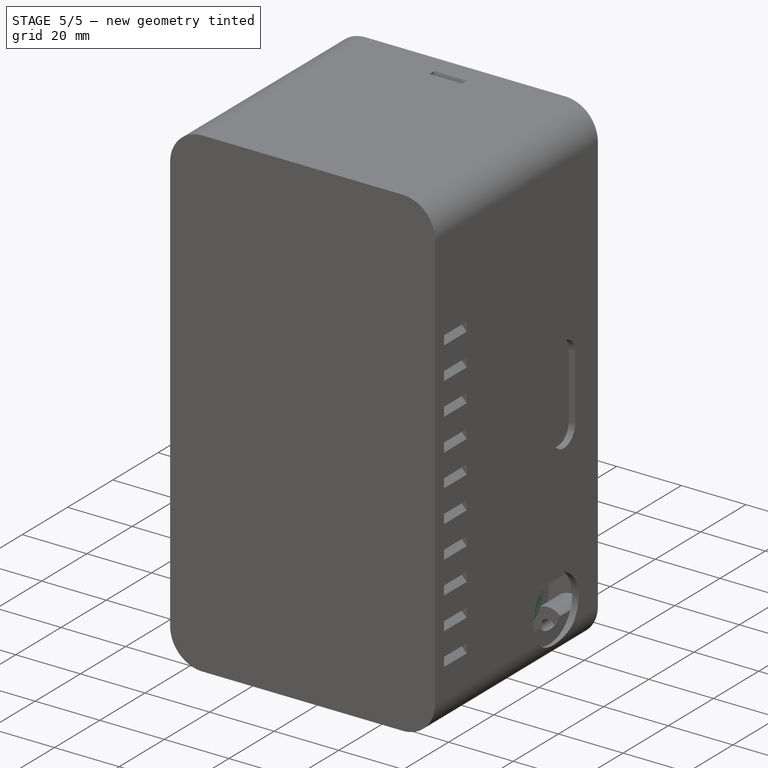
[diagram: stage 5 of 5 — iso view after this stage's code; geometry added in this stage tinted green]
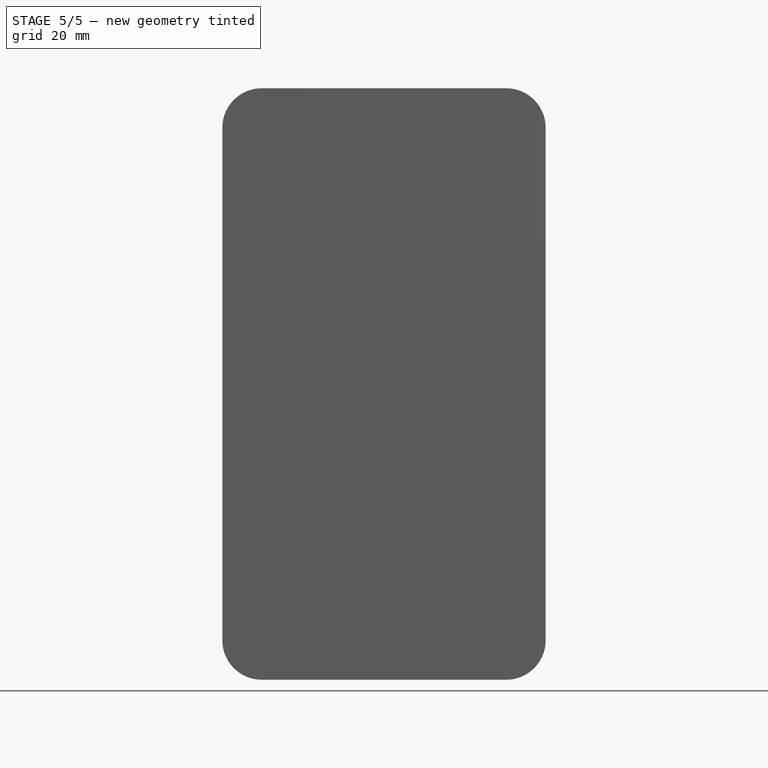
[diagram: stage 5 of 5 — front view after this stage's code; geometry added in this stage tinted green]
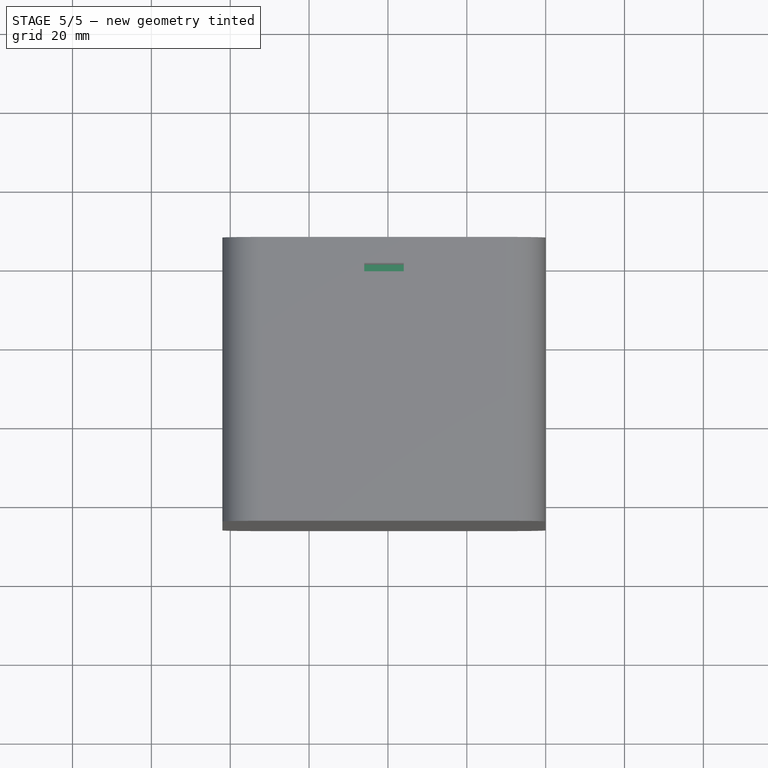
[diagram: stage 5 of 5 — top view after this stage's code; geometry added in this stage tinted green]
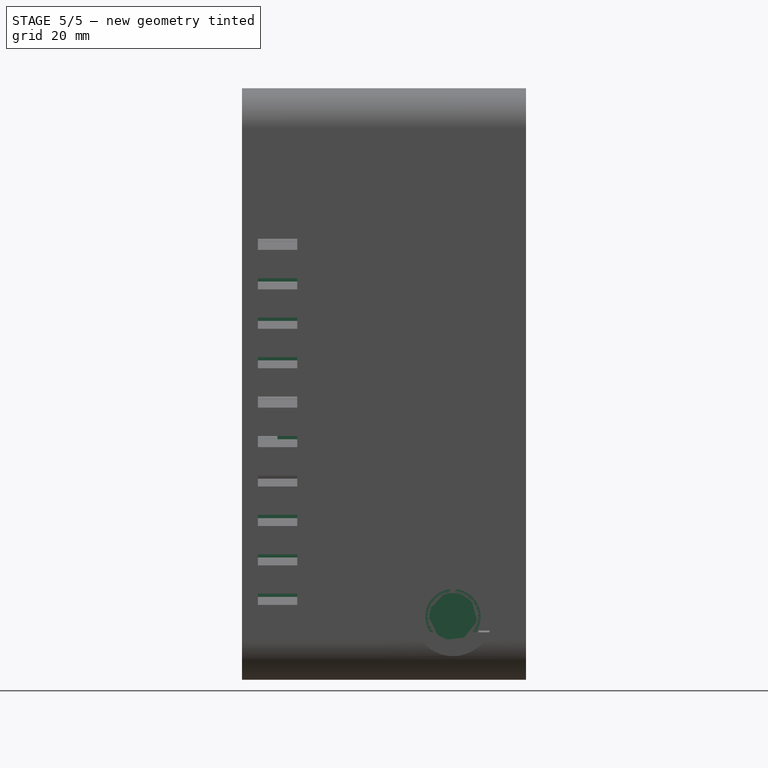
[diagram: stage 5 of 5 — right view after this stage's code; geometry added in this stage tinted green]
FEATURE [Part::Feature] Feature  label="Odroid-C4"
  Placement = pos=(66,-10,0) rot=(0.57735,-0.57735,0.57735;2.0944rad)
  shape: bbox 57.1 x 20.65 x 89.5 mm, 2775 faces, 0 solids (baked)
FEATURE [Part::Feature] Feature001  label="SCD30"
  Placement = pos=(-1.3e-14,-22,57) rot=(0,-1,0;1.5708rad)
  shape: bbox 44 x 15.1 x 64 mm, 422 faces, 13 solids (baked)
FEATURE [Part::Feature] Feature002  label="bme280"
  Placement = pos=(-60,-20,58) rot=(0.707107,0,0.707107;3.14159rad)
  shape: bbox 23.8 x 6.016 x 41.9 mm, 221 faces, 2 solids (baked)
FEATURE [Part::MultiFuse] Fusion  label="i2cSensors"
  Placement = pos=(68,-10,0) rot=(0,0,1;0rad)
  Shapes = -> [Feature001,Feature002]
FEATURE [Part::Box] Box  label="ips7100"
  AttacherType = Attacher::AttachEngine3D
  Height = 43.1
  Length = 47.1
  Width = 13.55
FEATURE [Part::Cylinder] Cylinder
  Angle = 360
  AttacherType = Attacher::AttachEngine3D
  FirstAngle = 0
  Height = 13.55
  Placement = pos=(2.5,13.55,2.5) rot=(1,0,0;1.5708rad)
  Radius = 1
  SecondAngle = 0
FEATURE [Part::Cylinder] Cylinder001  label="semiCut"
  Angle = 90
  AttacherType = Attacher::AttachEngine3D
  FirstAngle = 0
  Height = 4.13
  Placement = pos=(0,4.13,-9e-16) rot=(1,0,0;1.5708rad)
  Radius = 5.25
  SecondAngle = 0
FEATURE [Part::MultiFuse] Fusion001  label="ipsCut"
  Shapes = -> [Cylinder,Cylinder001]
FEATURE [Part::Cylinder] Cylinder002
  Angle = 360
  AttacherType = Attacher::AttachEngine3D
  FirstAngle = 0
  Height = 13.55
  Placement = pos=(2.5,13.55,2.5) rot=(1,0,0;1.5708rad)
  Radius = 1
  SecondAngle = 0
FEATURE [Part::Cylinder] Cylinder003  label="semiCut001"
  Angle = 90
  AttacherType = Attacher::AttachEngine3D
  FirstAngle = 0
  Height = 4.13
  Placement = pos=(0,4.13,-9e-16) rot=(1,0,0;1.5708rad)
  Radius = 5.25
  SecondAngle = 0
FEATURE [Part::MultiFuse] Fusion002  label="ipsCut001"
  Placement = pos=(47.1,0,43.1) rot=(0,1,0;3.14159rad)
  Shapes = -> [Cylinder002,Cylinder003]
FEATURE [Part::MultiFuse] Fusion003
  Shapes = -> [Fusion001,Fusion002]
FEATURE [Part::Cut] Cut  label="ips7100V"
  Base = -> Box
  Placement = pos=(15,-42,7.55) rot=(0,0,1;0rad)
  Tool = -> Fusion003
FEATURE [Part::Box] Box001  label="V25B"
  AttacherType = Attacher::AttachEngine3D
  Height = 77
  Length = 78
  Width = 26
FEATURE [Part::Cylinder] Cylinder004
  Angle = 90
  AttacherType = Attacher::AttachEngine3D
  FirstAngle = 0
  Height = 26
  Placement = pos=(0,26,-5.8e-15) rot=(1,0,0;1.5708rad)
  Radius = 10
  SecondAngle = 0
FEATURE [Part::Box] Box002  label="Cube"
  AttacherType = Attacher::AttachEngine3D
  Height = 10
  Length = 10
  Width = 26
FEATURE [Part::Cut] Cut001
  Base = -> Box002
  Placement = pos=(68,0,67) rot=(0,0,1;0rad)
  Tool = -> Cylinder004
FEATURE [Part::Box] Box003  label="Cube001"
  AttacherType = Attacher::AttachEngine3D
  Height = 10
  Length = 10
  Width = 26
FEATURE [Part::Cylinder] Cylinder005
  Angle = 90
  AttacherType = Attacher::AttachEngine3D
  FirstAngle = 0
  Height = 26
  Placement = pos=(0,26,-5.8e-15) rot=(1,0,0;1.5708rad)
  Radius = 10
  SecondAngle = 0
FEATURE [Part::Cut] Cut002
  Base = -> Box003
  Placement = pos=(68,0,10) rot=(0,1,0;1.5708rad)
  Tool = -> Cylinder005
FEATURE [Part::Box] Box004  label="Cube002"
  AttacherType = Attacher::AttachEngine3D
  Height = 10
  Length = 10
  Width = 26
FEATURE [Part::Cylinder] Cylinder006
  Angle = 90
  AttacherType = Attacher::AttachEngine3D
  FirstAngle = 0
  Height = 26
  Placement = pos=(0,26,-5.8e-15) rot=(1,0,0;1.5708rad)
  Radius = 10
  SecondAngle = 0
FEATURE [Part::Cut] Cut003
  Base = -> Box004
  Placement = pos=(10,0,10) rot=(0,1,0;3.14159rad)
  Tool = -> Cylinder006
FEATURE [Part::Box] Box005  label="Cube003"
  AttacherType = Attacher::AttachEngine3D
  Height = 10
  Length = 10
  Width = 26
FEATURE [Part::Cylinder] Cylinder007
  Angle = 90
  AttacherType = Attacher::AttachEngine3D
  FirstAngle = 0
  Height = 26
  Placement = pos=(0,26,-5.8e-15) rot=(1,0,0;1.5708rad)
  Radius = 10
  SecondAngle = 0
FEATURE [Part::Cut] Cut004
  Base = -> Box005
  Placement = pos=(10,0,67) rot=(0,-1,0;1.5708rad)
  Tool = -> Cylinder007
FEATURE [Part::MultiFuse] Fusion004  label="v25Cuts"
  Shapes = -> [Cut001,Cut002,Cut003,Cut004]
FEATURE [Part::Cut] Cut005  label="V25B001"
  Base = -> Box001
  Placement = pos=(0,-2,21) rot=(0,0,1;0rad)
  Tool = -> Fusion004
FEATURE [Part::MultiFuse] Fusion011  label="baseCuts001"
  Placement = pos=(0,8,0) rot=(0,0,1;0rad)
  Shapes = -> [Cylinder029,Cylinder030]
FEATURE [Part::Cut] Cut023  label="baseBottom"
  Base = -> Fusion013
  Tool = -> Fusion011
FEATURE [Part::Feature] Solid  label="m3HeatSet"
  Placement = pos=(2.5,2.3,100.5) rot=(1,0,0;3.14159rad)
  shape: bbox 4.772 x 4.354 x 4.772 mm, 239 faces (baked)
FEATURE [Part::Cylinder] Cylinder031
  Angle = 360
  AttacherType = Attacher::AttachEngine3D
  FirstAngle = 0
  Height = 8
  Placement = pos=(13.5,-2,61.5) rot=(1,0,0;1.5708rad)
  Radius = 5
  SecondAngle = 0
FEATURE [Part::Cylinder] Cylinder032  label="cuts"
  Angle = 360
  AttacherType = Attacher::AttachEngine3D
  FirstAngle = 0
  Height = 8
  Placement = pos=(13.5,-2,61.5) rot=(1,0,0;1.5708rad)
  Radius = 2
  SecondAngle = 0
FEATURE [Part::Cylinder] Cylinder034
  Angle = 360
  AttacherType = Attacher::AttachEngine3D
  FirstAngle = 0
  Height = 8
  Placement = pos=(62.5,-2,61.5) rot=(1,0,0;1.5708rad)
  Radius = 5
  SecondAngle = 0
FEATURE [Part::Cylinder] Cylinder035  label="cuts001"
  Angle = 360
  AttacherType = Attacher::AttachEngine3D
  FirstAngle = 0
  Height = 8
  Placement = pos=(62.5,-2,61.5) rot=(1,0,0;1.5708rad)
  Radius = 2
  SecondAngle = 0
FEATURE [Part::Cylinder] Cylinder036
  Angle = 90
  AttacherType = Attacher::AttachEngine3D
  FirstAngle = 0
  Height = 8
  Placement = pos=(78,-2,98) rot=(0.57735,-0.57735,0.57735;2.0944rad)
  Radius = 7
  SecondAngle = 0
FEATURE [Part::Cylinder] Cylinder037
  Angle = 90
  AttacherType = Attacher::AttachEngine3D
  FirstAngle = 0
  Height = 8
  Placement = pos=(0,-2,98) rot=(1,0,0;1.5708rad)
  Radius = 7
  SecondAngle = 0
FEATURE [Part::Box] Box025  label="Cube020"
  AttacherType = Attacher::AttachEngine3D
  Height = 7
  Length = 78
  Placement = pos=(0,-5,58) rot=(0,0,1;0rad)
  Width = 3
FEATURE [Part::Box] Box026  label="Cube021"
  AttacherType = Attacher::AttachEngine3D
  Height = 7
  Length = 40
  Placement = pos=(7,-5,58) rot=(0,-1,0;1.5708rad)
  Width = 3
FEATURE [Part::Box] Box027  label="Cube022"
  AttacherType = Attacher::AttachEngine3D
  Height = 7
  Length = 40
  Placement = pos=(78,-5,58) rot=(0,-1,0;1.5708rad)
  Width = 3
FEATURE [Part::MultiFuse] Fusion014
  Shapes = -> [Box027,Box025,Box026,Cylinder034,Cylinder031]
FEATURE [Part::Cylinder] Cylinder038  label="m3Screw"
  Angle = 360
  AttacherType = Attacher::AttachEngine3D
  FirstAngle = 0
  Height = 8
  Placement = pos=(75.5,-2,100.5) rot=(1,0,0;1.5708rad)
  Radius = 1.6
  SecondAngle = 0
FEATURE [Part::Cylinder] Cylinder039  label="m3Screw001"
  Angle = 360
  AttacherType = Attacher::AttachEngine3D
  FirstAngle = 0
  Height = 8
  Placement = pos=(2.5,-2,100.5) rot=(1,0,0;1.5708rad)
  Radius = 1.6
  SecondAngle = 0
FEATURE [Part::MultiFuse] Fusion015  label="c4Hold"
  Shapes = -> [Cylinder036,Cylinder037,Fusion014]
FEATURE [Part::MultiFuse] Fusion016  label="c4oldCuts"
  Shapes = -> [Cylinder039,Cylinder032,Cylinder035,Cylinder038]
FEATURE [Part::Cut] Cut024  label="c4Hold001"
  Base = -> Fusion015
  Tool = -> Fusion016
FEATURE [Part::Cylinder] Cylinder070
  Angle = 360
  AttacherType = Attacher::AttachEngine3D
  FirstAngle = 0
  Height = 20
  Radius = 6
  SecondAngle = 0
FEATURE [Part::Cylinder] Cylinder071
  Angle = 360
  AttacherType = Attacher::AttachEngine3D
  FirstAngle = 0
  Height = 5
  Radius = 7
  SecondAngle = 0
FEATURE [Part::MultiFuse] Fusion022  label="powerSwitch001"
  Placement = pos=(71,7.5,14) rot=(0,-1,0;1.5708rad)
  Shapes = -> [Cylinder070,Cylinder071]
FEATURE [Part::MultiFuse] Fusion025  label="baseBottom001"
  Shapes = -> [Cylinder084,Cylinder086,Cylinder088,Cylinder090,Cut023]
FEATURE [Part::Cut] Cut044  label="baseBottom002"
  Base = -> Fusion025
  Tool = -> Fusion026
FEATURE [Part::Cut] Cut045  label="baseBottom003"
  Base = -> Cut044
  Tool = -> Fusion027
FEATURE [Part::Cylinder] Cylinder100  label="Ethernet002"
  Angle = 360
  AttacherType = Attacher::AttachEngine3D
  FirstAngle = 0
  Height = 36
  Radius = 10.5
  SecondAngle = 0
FEATURE [Part::Cylinder] Cylinder101  label="Ethernet003"
  Angle = 360
  AttacherType = Attacher::AttachEngine3D
  FirstAngle = 0
  Height = 2.25
  Placement = pos=(0,0,13.5) rot=(0,0,1;0rad)
  Radius = 15
  SecondAngle = 0
FEATURE [Part::MultiFuse] Fusion030  label="Ethenet001"
  Placement = pos=(34,5,124.5) rot=(0,-1,0;1.5708rad)
  Shapes = -> [Cylinder100,Cylinder101]
FEATURE [Part::MultiFuse] Fusion031  label="baseBottom004"
  Shapes = -> [Cut045,Box038]
FEATURE [Part::MultiFuse] Fusion032  label="baseBottom005"
  Shapes = -> [Fusion031,Cylinder102]
FEATURE [Part::Cut] Cut046  label="baseBottom006"
  Base = -> Fusion032
  Tool = -> Fusion033
FEATURE [Part::Cut] Cut050  label="baseBottom007"
  Base = -> Cut046
  Tool = -> Cut049
FEATURE [Part::Cut] Cut051  label="baseBottom008"
  Base = -> Cut050
  Tool = -> Fusion035
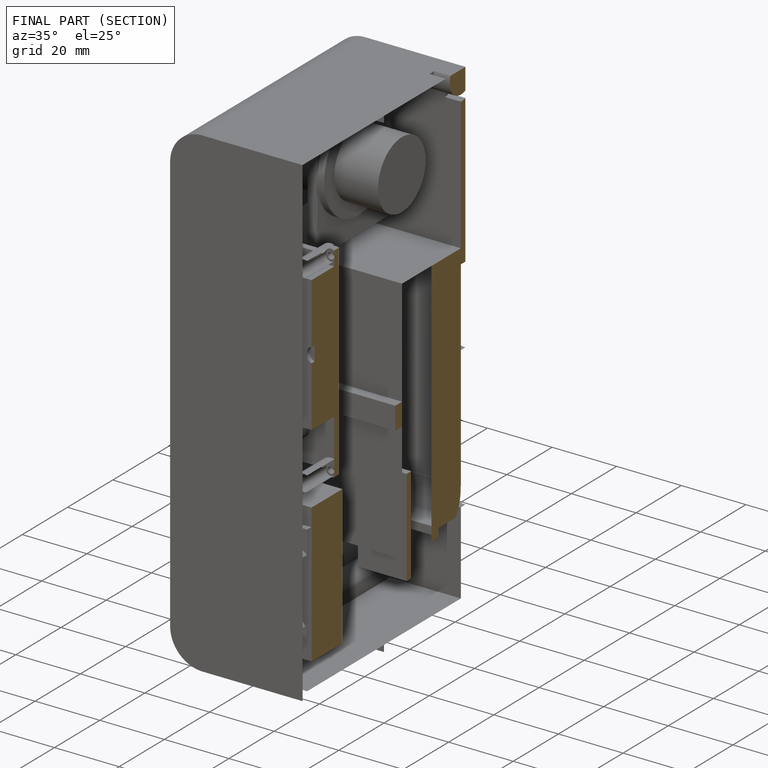
[diagram: finished part — half-section view (interior)]
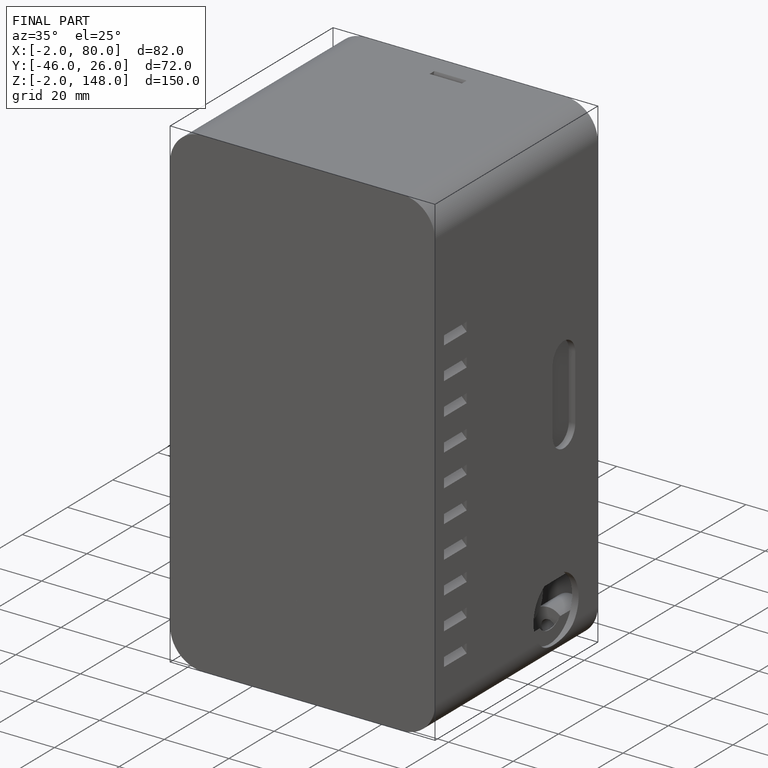
[diagram: finished part — iso view with bounding-box wireframe]
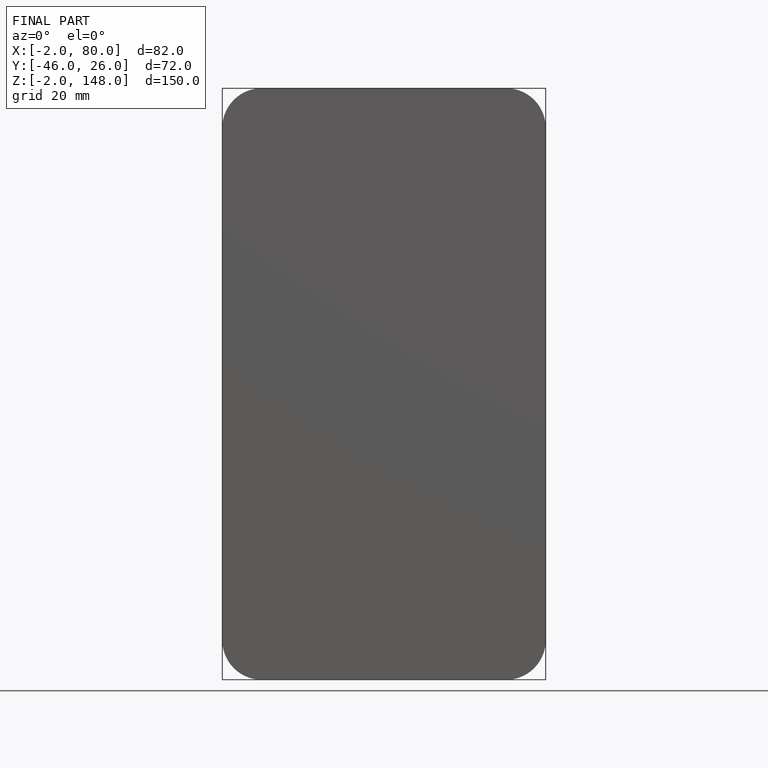
[diagram: finished part — front view with bounding-box wireframe]
